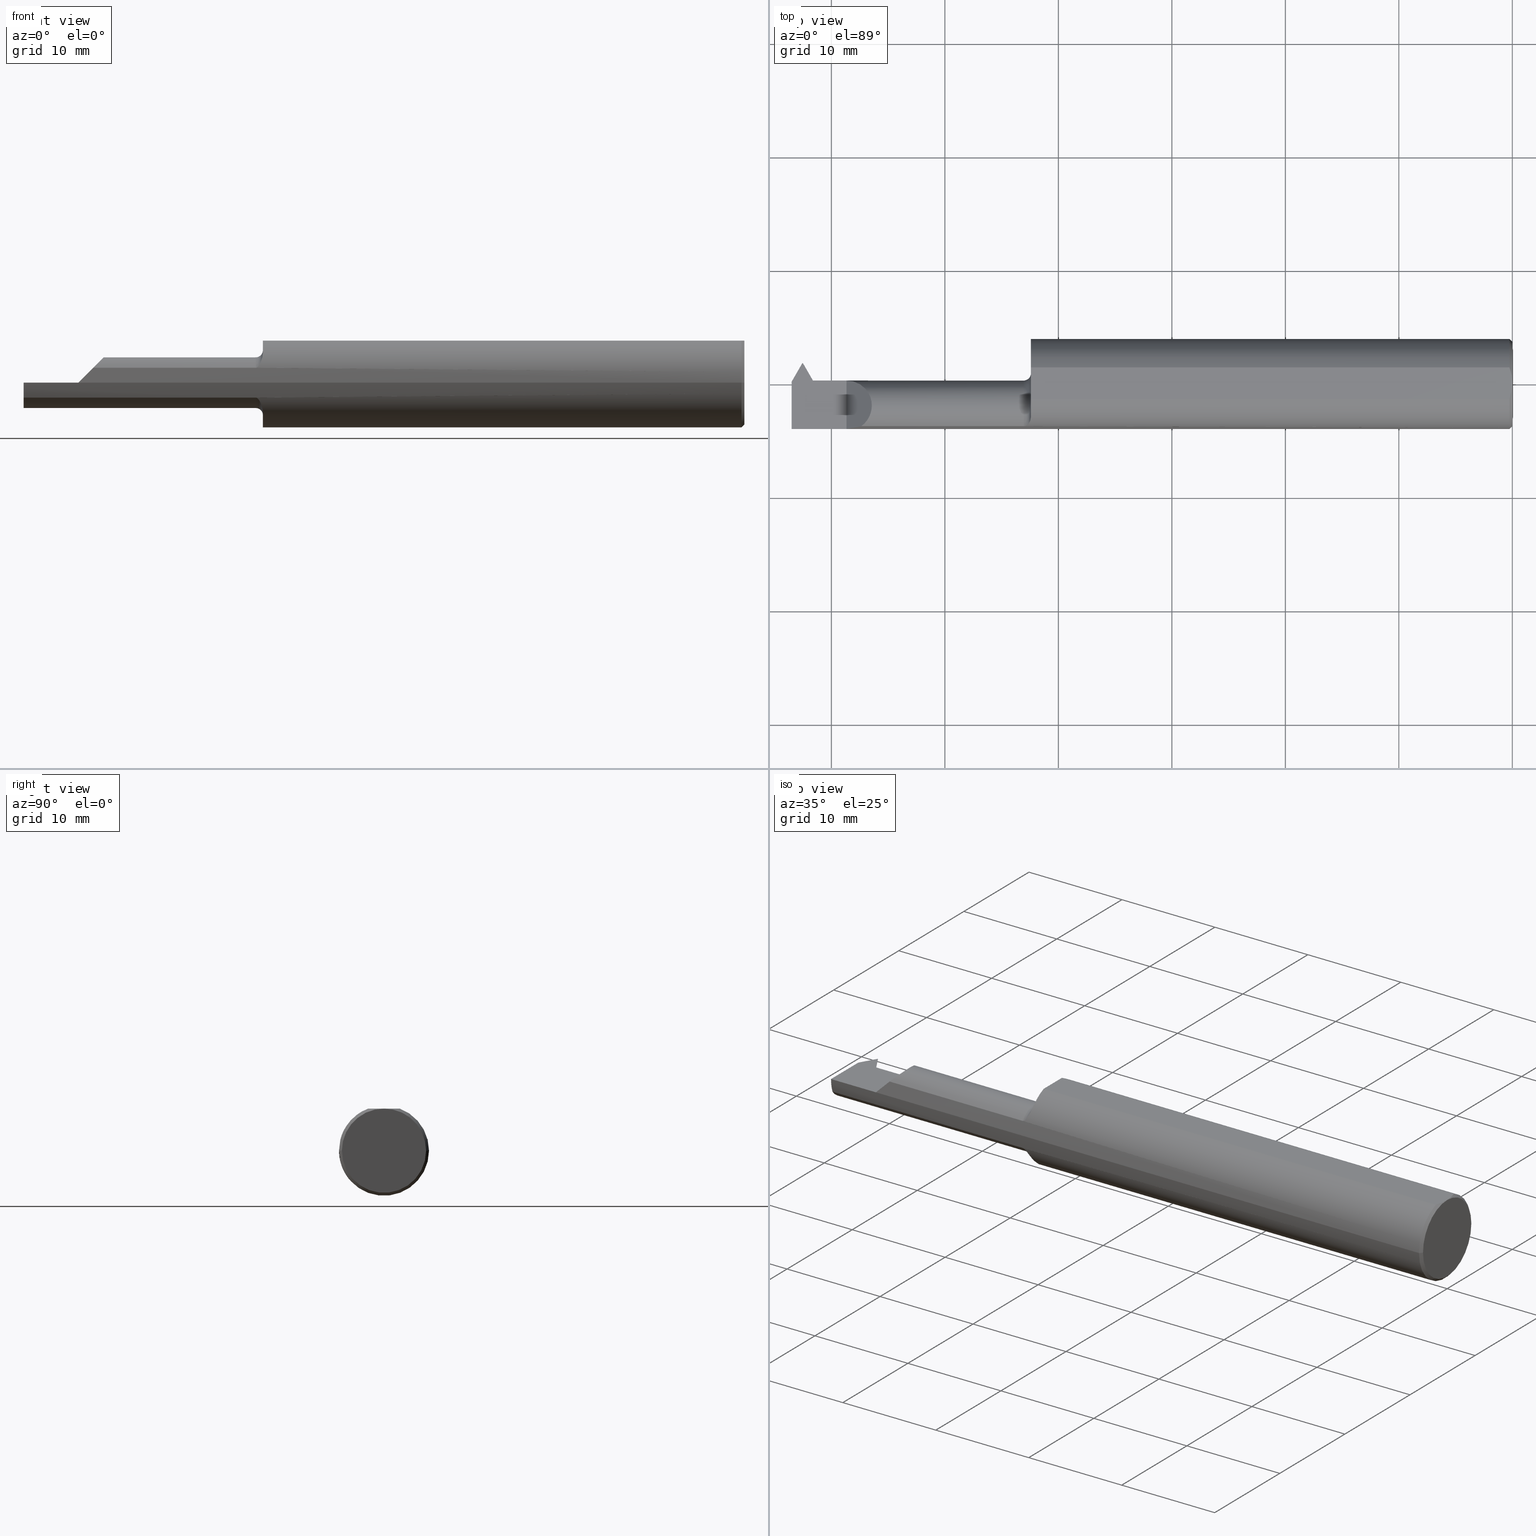
[diagram: canonical four-view strip — front | top / right | iso, engineering-drawing reading convention]
A machine part, canonical four-view strip (front | top / right | iso — engineering-drawing reading convention). The complete STEP part file that produces these views, byte-faithful:
ISO-10303-21;
HEADER;
FILE_DESCRIPTION (( 'STEP AP203' ),
    '1' );
FILE_NAME ('231801-LHTT230750.STEP',
    '2025-01-23T22:11:19',
    ( '' ),
    ( '' ),
    'SwSTEP 2.0',
    'SolidWorks 2024',
    '' );
FILE_SCHEMA (( 'CONFIG_CONTROL_DESIGN' ));
ENDSEC;

DATA;
#1 = ORIENTED_EDGE ( 'NONE', *, *, #63, .F. ) ;
#2 = SECURITY_CLASSIFICATION_LEVEL ( 'unclassified' ) ;
#3 = CARTESIAN_POINT ( 'NONE',  ( -1.693447391068664043, -0.1472695137984706970, 0.05175809410673895550 ) ) ;
#4 = LINE ( 'NONE', #132, #308 ) ;
#5 = EDGE_LOOP ( 'NONE', ( #803, #243, #349, #690 ) ) ;
#6 = CONICAL_SURFACE ( 'NONE', #51, 0.1461000000000006183, 0.7853981633974638221 ) ;
#7 = DIRECTION ( 'NONE',  ( 1.000000000000000000, 1.553500558300393113E-17, -0.000000000000000000 ) ) ;
#8 = ORIENTED_EDGE ( 'NONE', *, *, #169, .T. ) ;
#9 = EDGE_CURVE ( 'NONE', #755, #439, #522, .T. ) ;
#10 = VECTOR ( 'NONE', #766, 39.37007874015748143 ) ;
#11 = VECTOR ( 'NONE', #318, 39.37007874015748143 ) ;
#12 = LINE ( 'NONE', #428, #177 ) ;
#13 = DIRECTION ( 'NONE',  ( -4.671396556664535003E-18, 0.000000000000000000, -1.000000000000000000 ) ) ;
#14 = ORIENTED_EDGE ( 'NONE', *, *, #559, .F. ) ;
#15 = DATE_AND_TIME ( #818, #681 ) ;
#16 = CARTESIAN_POINT ( 'NONE',  ( -1.669999999999999929, 0.1561000000000000443, 0.000000000000000000 ) ) ;
#17 = CARTESIAN_POINT ( 'NONE',  ( -2.500000000000000000, 0.07189999999999992231, 8.875653457662611807E-19 ) ) ;
#18 = ORIENTED_EDGE ( 'NONE', *, *, #241, .T. ) ;
#19 = VECTOR ( 'NONE', #351, 39.37007874015748854 ) ;
#20 = CARTESIAN_POINT ( 'NONE',  ( -1.694999999999999840, -0.07610000000000005649, 0.000000000000000000 ) ) ;
#21 = AXIS2_PLACEMENT_3D ( 'NONE', #337, #810, #553 ) ;
#22 = VERTEX_POINT ( 'NONE', #319 ) ;
#23 = ADVANCED_FACE ( 'NONE', ( #661 ), #96, .T. ) ;
#24 = DIRECTION ( 'NONE',  ( -1.000000000000000000, -1.301231752219315598E-17, -0.000000000000000000 ) ) ;
#25 = ADVANCED_FACE ( 'NONE', ( #722 ), #666, .T. ) ;
#26 = ADVANCED_FACE ( 'NONE', ( #851 ), #197, .T. ) ;
#27 = ORIENTED_EDGE ( 'NONE', *, *, #686, .F. ) ;
#28 = LINE ( 'NONE', #560, #564 ) ;
#29 = VERTEX_POINT ( 'NONE', #597 ) ;
#30 = LINE ( 'NONE', #116, #10 ) ;
#31 = DIRECTION ( 'NONE',  ( 0.000000000000000000, -1.000000000000000000, 0.000000000000000000 ) ) ;
#32 = CIRCLE ( 'NONE', #226, 0.1561000000000000165 ) ;
#33 = ORIENTED_EDGE ( 'NONE', *, *, #344, .F. ) ;
#34 = DIRECTION ( 'NONE',  ( 1.224646799147319927E-16, -1.000000000000000000, 0.000000000000000000 ) ) ;
#35 = ADVANCED_FACE ( 'NONE', ( #524 ), #127, .F. ) ;
#36 = CARTESIAN_POINT ( 'NONE',  ( -0.004370115738486220897, 0.03710696786819750459, 0.1461000000000000076 ) ) ;
#37 = CARTESIAN_POINT ( 'NONE',  ( -1.669999999999965068, -0.1183915220908339644, -0.1019192528753024157 ) ) ;
#38 = DIRECTION ( 'NONE',  ( 0.000000000000000000, -1.000000000000000000, 0.000000000000000000 ) ) ;
#39 = CARTESIAN_POINT ( 'NONE',  ( -2.460717056391643176, 0.07238371841597715517, 0.001329005425271832797 ) ) ;
#40 = CARTESIAN_POINT ( 'NONE',  ( 0.000000000000000000, 2.449293598294705921E-16, 0.000000000000000000 ) ) ;
#41 = ORIENTED_EDGE ( 'NONE', *, *, #94, .F. ) ;
#42 = LINE ( 'NONE', #195, #696 ) ;
#43 = CARTESIAN_POINT ( 'NONE',  ( -1.669999999999999929, 4.041334437186263414E-17, 0.000000000000000000 ) ) ;
#44 = ORIENTED_EDGE ( 'NONE', *, *, #130, .T. ) ;
#45 = EDGE_LOOP ( 'NONE', ( #414, #752, #634 ) ) ;
#46 =( LENGTH_UNIT ( ) NAMED_UNIT ( * ) SI_UNIT ( $, .METRE. ) );
#47 = EDGE_CURVE ( 'NONE', #409, #616, #397, .T. ) ;
#48 = CIRCLE ( 'NONE', #404, 0.1461000000000006183 ) ;
#49 = CARTESIAN_POINT ( 'NONE',  ( -2.421108983848621943, 0.01189999999999981004, 0.000000000000000000 ) ) ;
#50 = DIRECTION ( 'NONE',  ( 1.098490779351301254E-17, -0.7071067811865513475, 0.7071067811865437980 ) ) ;
#51 = AXIS2_PLACEMENT_3D ( 'NONE', #623, #497, #34 ) ;
#52 = EDGE_CURVE ( 'NONE', #662, #713, #48, .T. ) ;
#53 = ORIENTED_EDGE ( 'NONE', *, *, #392, .T. ) ;
#54 = CARTESIAN_POINT ( 'NONE',  ( -2.500000000000000000, -0.1561000000000000720, 1.911673653469018376E-17 ) ) ;
#55 = CARTESIAN_POINT ( 'NONE',  ( -1.693446618368614542, -0.1472695137976343938, -0.05175809410911836467 ) ) ;
#56 = ORIENTED_EDGE ( 'NONE', *, *, #548, .T. ) ;
#57 = FACE_OUTER_BOUND ( 'NONE', #166, .T. ) ;
#58 = CARTESIAN_POINT ( 'NONE',  ( -2.413632881043807465, 0.007084169345407169416, -0.02871226167188161912 ) ) ;
#59 = EDGE_CURVE ( 'NONE', #309, #869, #362, .T. ) ;
#60 = DIRECTION ( 'NONE',  ( 0.000000000000000000, -0.7071067811865539010, -0.7071067811865411334 ) ) ;
#61 = VERTEX_POINT ( 'NONE', #730 ) ;
#62 = FACE_OUTER_BOUND ( 'NONE', #811, .T. ) ;
#63 = EDGE_CURVE ( 'NONE', #276, #869, #833, .T. ) ;
#64 = CARTESIAN_POINT ( 'NONE',  ( -1.689325941459028479, -0.1465552322353804726, 0.05375321273095502728 ) ) ;
#65 = PLANE ( 'NONE',  #828 ) ;
#66 = ORIENTED_EDGE ( 'NONE', *, *, #459, .F. ) ;
#67 = COORDINATED_UNIVERSAL_TIME_OFFSET ( 8, 0, .BEHIND. ) ;
#68 = LOCAL_TIME ( 14, 11, 19.00000000000000000, #224 ) ;
#69 = AXIS2_PLACEMENT_3D ( 'NONE', #20, #24, #565 ) ;
#70 = CARTESIAN_POINT ( 'NONE',  ( -2.421108983848621943, -0.05220356898271225760, -0.08799999999999999489 ) ) ;
#71 = DIRECTION ( 'NONE',  ( 1.165357228183001544E-14, 0.7071067811865436870, 0.7071067811865512365 ) ) ;
#72 = VERTEX_POINT ( 'NONE', #348 ) ;
#73 = DATE_AND_TIME ( #617, #450 ) ;
#74 = DIRECTION ( 'NONE',  ( -0.4999999999999907296, 0.000000000000000000, 0.8660254037844440367 ) ) ;
#75 = CARTESIAN_POINT ( 'NONE',  ( -1.669999999999999929, -0.1142537450715595260, -0.1063639588254144952 ) ) ;
#76 = EDGE_LOOP ( 'NONE', ( #200, #700, #272, #56, #825, #339, #773, #27, #18, #848, #820, #456 ) ) ;
#77 = APPROVAL_ROLE ( '' ) ;
#78 = CARTESIAN_POINT ( 'NONE',  ( -2.415267408189822440, 0.007084169345407207580, -0.02871226167188153586 ) ) ;
#79 = VECTOR ( 'NONE', #235, 39.37007874015748143 ) ;
#80 = CARTESIAN_POINT ( 'NONE',  ( -2.413632881043807465, 0.6503230061517655258, 0.6145265751344650695 ) ) ;
#81 = ORIENTED_EDGE ( 'NONE', *, *, #846, .T. ) ;
#82 = PERSON_AND_ORGANIZATION_ROLE ( 'creator' ) ;
#83 = CC_DESIGN_APPROVAL ( #721, ( #300 ) ) ;
#84 = VECTOR ( 'NONE', #527, 39.37007874015748854 ) ;
#85 = DIRECTION ( 'NONE',  ( 1.000000000000000000, 1.224646799147352961E-16, -0.000000000000000000 ) ) ;
#86 = CARTESIAN_POINT ( 'NONE',  ( -2.462506354991546242, 0.002980892972014761392, -0.08799999999999992550 ) ) ;
#87 = ORIENTED_EDGE ( 'NONE', *, *, #146, .F. ) ;
#88 = DATE_AND_TIME ( #208, #231 ) ;
#89 = CARTESIAN_POINT ( 'NONE',  ( -1.669999999999999929, -0.1142537450716377551, 0.1063639588253864066 ) ) ;
#90 = CC_DESIGN_DATE_AND_TIME_ASSIGNMENT ( #760, #685, ( #184 ) ) ;
#91 = ORIENTED_EDGE ( 'NONE', *, *, #749, .F. ) ;
#92 = EDGE_CURVE ( 'NONE', #403, #207, #754, .T. ) ;
#93 = AXIS2_PLACEMENT_3D ( 'NONE', #332, #610, #674 ) ;
#94 = EDGE_CURVE ( 'NONE', #61, #662, #482, .T. ) ;
#95 = LINE ( 'NONE', #17, #271 ) ;
#96 = CONICAL_SURFACE ( 'NONE', #719, 0.1461000000000006183, 0.7853981633974638221 ) ;
#97 = VERTEX_POINT ( 'NONE', #671 ) ;
#98 = VECTOR ( 'NONE', #175, 39.37007874015748143 ) ;
#99 = CARTESIAN_POINT ( 'NONE',  ( -2.426108983848622280, 0.01189999999999981004, 0.000000000000000000 ) ) ;
#100 = ORIENTED_EDGE ( 'NONE', *, *, #290, .T. ) ;
#101 = FACE_OUTER_BOUND ( 'NONE', #537, .T. ) ;
#102 = LINE ( 'NONE', #709, #379 ) ;
#103 = ORIENTED_EDGE ( 'NONE', *, *, #405, .F. ) ;
#104 = CARTESIAN_POINT ( 'NONE',  ( -2.500000000000000000, -0.07610000000000008424, 0.000000000000000000 ) ) ;
#105 = DIRECTION ( 'NONE',  ( 1.224646799147352961E-16, -1.000000000000000000, 0.000000000000000000 ) ) ;
#106 = CIRCLE ( 'NONE', #659, 0.1561000000000000165 ) ;
#107 = CARTESIAN_POINT ( 'NONE',  ( -2.417151050136866708, 0.01027984334874563511, -0.01945386571184650262 ) ) ;
#108 = AXIS2_PLACEMENT_3D ( 'NONE', #744, #13, #602 ) ;
#109 = DIRECTION ( 'NONE',  ( 0.4999999999999878431, 0.8660254037844455910, 0.000000000000000000 ) ) ;
#110 = B_SPLINE_CURVE_WITH_KNOTS ( 'NONE', 3,
 ( #866, #412, #481, #477, #211, #748, #465, #284, #407, #279, #64, #336, #3, #687 ),
 .UNSPECIFIED., .F., .F.,
 ( 4, 2, 2, 2, 2, 2, 4 ),
 ( 0.0002357998142118108715, 0.0006937643599550314191, 0.001151728905698251940, 0.001609693451441472460, 0.001838675724313082504, 0.001953166860748887634, 0.002067657997184692547 ),
 .UNSPECIFIED. ) ;
#111 = CARTESIAN_POINT ( 'NONE',  ( -2.488969632988080628E-16, 0.01190000000005054549, 0.000000000000000000 ) ) ;
#112 = VECTOR ( 'NONE', #441, 39.37007874015748143 ) ;
#113 = ORIENTED_EDGE ( 'NONE', *, *, #161, .F. ) ;
#114 = PRODUCT_RELATED_PRODUCT_CATEGORY ( 'detail', '', ( #460 ) ) ;
#115 = ORIENTED_EDGE ( 'NONE', *, *, #365, .F. ) ;
#116 = CARTESIAN_POINT ( 'NONE',  ( -2.058054491924310891, -0.1472695137976346713, 0.05175809410911783731 ) ) ;
#117 = UNCERTAINTY_MEASURE_WITH_UNIT (LENGTH_MEASURE( 1.000000000000000082E-05 ), #401, 'distance_accuracy_value', 'NONE');
#118 = DIRECTION ( 'NONE',  ( 1.000000000000000000, -0.000000000000000000, 0.000000000000000000 ) ) ;
#119 = EDGE_LOOP ( 'NONE', ( #834, #371, #511 ) ) ;
#120 = VERTEX_POINT ( 'NONE', #544 ) ;
#121 = PERSON_AND_ORGANIZATION ( #583, #466 ) ;
#122 = LINE ( 'NONE', #176, #185 ) ;
#123 = CARTESIAN_POINT ( 'NONE',  ( -1.691958743194513115, -0.1470959753313503537, -0.05225520737744673849 ) ) ;
#124 = ORIENTED_EDGE ( 'NONE', *, *, #510, .F. ) ;
#125 = PERSON_AND_ORGANIZATION ( #583, #466 ) ;
#126 = CARTESIAN_POINT ( 'NONE',  ( -0.009999999999999073866, 0.05497272050753925637, 0.1461000000000000076 ) ) ;
#127 = PLANE ( 'NONE',  #816 ) ;
#128 = ORIENTED_EDGE ( 'NONE', *, *, #434, .F. ) ;
#129 = APPLICATION_PROTOCOL_DEFINITION ( 'international standard', 'config_control_design', 1994, #416 ) ;
#130 = EDGE_CURVE ( 'NONE', #598, #304, #815, .T. ) ;
#131 = DIRECTION ( 'NONE',  ( 0.000000000000000000, -1.000000000000000000, -1.776356839400250465E-15 ) ) ;
#132 = CARTESIAN_POINT ( 'NONE',  ( -2.481122797377521838, -0.02926373109667449249, -0.08799999999999999489 ) ) ;
#133 = ORIENTED_EDGE ( 'NONE', *, *, #264, .T. ) ;
#134 = ADVANCED_FACE ( 'NONE', ( #418 ), #402, .T. ) ;
#135 = FACE_OUTER_BOUND ( 'NONE', #521, .T. ) ;
#136 = ORIENTED_EDGE ( 'NONE', *, *, #651, .T. ) ;
#137 = VECTOR ( 'NONE', #341, 39.37007874015748143 ) ;
#138 = VECTOR ( 'NONE', #827, 39.37007874015748143 ) ;
#139 = FACE_OUTER_BOUND ( 'NONE', #119, .T. ) ;
#140 = APPLICATION_CONTEXT ( 'configuration controlled 3d designs of mechanical parts and assemblies' ) ;
#141 = CARTESIAN_POINT ( 'NONE',  ( -1.669999999999999929, -0.05497272050753901351, 0.1461000000000000076 ) ) ;
#142 = ORIENTED_EDGE ( 'NONE', *, *, #835, .T. ) ;
#143 = CALENDAR_DATE ( 2025, 23, 1 ) ;
#144 = CARTESIAN_POINT ( 'NONE',  ( -1.819714732526711343, -1.050612790672645458, -0.03000000000000922762 ) ) ;
#145 = VERTEX_POINT ( 'NONE', #620 ) ;
#146 = EDGE_CURVE ( 'NONE', #304, #403, #222, .T. ) ;
#147 = DIRECTION ( 'NONE',  ( -0.7071067811865368036, 0.7071067811865583419, 8.659560562355067211E-17 ) ) ;
#148 = ADVANCED_FACE ( 'NONE', ( #333 ), #536, .F. ) ;
#149 = CARTESIAN_POINT ( 'NONE',  ( -0.009999999999999073866, -0.05497272050753881228, 0.1461000000000000076 ) ) ;
#150 = ORIENTED_EDGE ( 'NONE', *, *, #640, .T. ) ;
#151 = DATE_TIME_ROLE ( 'creation_date' ) ;
#152 = DIRECTION ( 'NONE',  ( -1.224646799147352961E-16, 1.000000000000000000, 0.000000000000000000 ) ) ;
#153 = AXIS2_PLACEMENT_3D ( 'NONE', #693, #280, #352 ) ;
#154 = DIRECTION ( 'NONE',  ( 0.000000000000000000, 1.000000000000000000, 0.000000000000000000 ) ) ;
#155 = EDGE_LOOP ( 'NONE', ( #163, #124 ) ) ;
#156 = APPROVAL_STATUS ( 'not_yet_approved' ) ;
#157 = FACE_OUTER_BOUND ( 'NONE', #76, .T. ) ;
#158 = EDGE_CURVE ( 'NONE', #448, #795, #589, .T. ) ;
#159 = CARTESIAN_POINT ( 'NONE',  ( -2.274912119307999969, -0.1531282856005203030, 0.03508788069200007714 ) ) ;
#160 = ORIENTED_EDGE ( 'NONE', *, *, #392, .F. ) ;
#161 = EDGE_CURVE ( 'NONE', #585, #612, #873, .T. ) ;
#162 = DIRECTION ( 'NONE',  ( 1.000000000000000000, 0.000000000000000000, -0.000000000000000000 ) ) ;
#163 = ORIENTED_EDGE ( 'NONE', *, *, #169, .F. ) ;
#164 = AXIS2_PLACEMENT_3D ( 'NONE', #614, #217, #601 ) ;
#165 = CARTESIAN_POINT ( 'NONE',  ( -2.292330217250612812, -0.1561000000000000443, 0.01766978274938703006 ) ) ;
#166 = EDGE_LOOP ( 'NONE', ( #386, #652, #214, #485, #531 ) ) ;
#167 = AXIS2_PLACEMENT_3D ( 'NONE', #822, #826, #152 ) ;
#168 = CARTESIAN_POINT ( 'NONE',  ( -2.500000000000000000, -6.123233995736767268E-17, 0.000000000000000000 ) ) ;
#169 = EDGE_CURVE ( 'NONE', #608, #22, #289, .T. ) ;
#170 = ORIENTED_EDGE ( 'NONE', *, *, #559, .T. ) ;
#171 = DIMENSIONAL_EXPONENTS ( 1.000000000000000000, 0.000000000000000000, 0.000000000000000000, 0.000000000000000000, 0.000000000000000000, 0.000000000000000000, 0.000000000000000000 ) ;
#172 = CARTESIAN_POINT ( 'NONE',  ( -1.878571113266080284, 1.084593537935991225, 0.000000000000000000 ) ) ;
#173 = FACE_OUTER_BOUND ( 'NONE', #239, .T. ) ;
#174 = ORIENTED_EDGE ( 'NONE', *, *, #686, .T. ) ;
#175 = DIRECTION ( 'NONE',  ( 1.000000000000000000, 1.301231752219315598E-17, 0.000000000000000000 ) ) ;
#176 = CARTESIAN_POINT ( 'NONE',  ( -2.500000000000000000, 0.01189999999999991238, 8.875653457662611807E-19 ) ) ;
#177 = VECTOR ( 'NONE', #85, 39.37007874015748143 ) ;
#178 = EDGE_LOOP ( 'NONE', ( #847, #558, #817, #498, #400, #837, #174 ) ) ;
#179 = AXIS2_PLACEMENT_3D ( 'NONE', #638, #307, #162 ) ;
#180 = ORIENTED_EDGE ( 'NONE', *, *, #326, .T. ) ;
#181 = DIRECTION ( 'NONE',  ( 1.000000000000000000, 1.224646799147352961E-16, -0.000000000000000000 ) ) ;
#182 = PLANE ( 'NONE',  #427 ) ;
#183 = ADVANCED_FACE ( 'NONE', ( #135 ), #65, .F. ) ;
#184 = SECURITY_CLASSIFICATION ( '', '', #2 ) ;
#185 = VECTOR ( 'NONE', #720, 39.37007874015748143 ) ;
#186 = DIRECTION ( 'NONE',  ( -1.000000000000000000, 0.000000000000000000, -0.000000000000000000 ) ) ;
#187 = DIRECTION ( 'NONE',  ( -1.000000000000000000, -1.224646799147319927E-16, 0.000000000000000000 ) ) ;
#188 = ADVANCED_FACE ( 'NONE', ( #413 ), #824, .F. ) ;
#189 = DIRECTION ( 'NONE',  ( 1.000000000000000000, 1.224646799147352961E-16, -0.000000000000000000 ) ) ;
#190 = DIRECTION ( 'NONE',  ( 0.000000000000000000, -1.000000000000000000, 0.000000000000000000 ) ) ;
#191 = ORIENTED_EDGE ( 'NONE', *, *, #63, .T. ) ;
#192 = DIRECTION ( 'NONE',  ( 0.000000000000000000, 0.000000000000000000, 1.000000000000000000 ) ) ;
#193 = DIRECTION ( 'NONE',  ( 1.000000000000000000, 1.301231752219315598E-17, 0.000000000000000000 ) ) ;
#194 = CARTESIAN_POINT ( 'NONE',  ( -2.421108983848621943, 0.01189999999999981004, 0.000000000000000000 ) ) ;
#195 = CARTESIAN_POINT ( 'NONE',  ( -2.500000000000000000, -0.1561000000000000720, 8.875653457662609881E-19 ) ) ;
#196 = CARTESIAN_POINT ( 'NONE',  ( -2.500000000000000000, 0.007084169345407198906, -0.02871226167188161912 ) ) ;
#197 = PLANE ( 'NONE',  #297 ) ;
#198 = EDGE_CURVE ( 'NONE', #361, #97, #4, .T. ) ;
#199 = CC_DESIGN_SECURITY_CLASSIFICATION ( #184, ( #300 ) ) ;
#200 = ORIENTED_EDGE ( 'NONE', *, *, #342, .F. ) ;
#201 = DIRECTION ( 'NONE',  ( -9.201097958895396924E-18, 0.7071067811865539010, 0.7071067811865411334 ) ) ;
#202 = CARTESIAN_POINT ( 'NONE',  ( -2.461493645008453690, 0.06098089297201456094, -0.02999999999999948888 ) ) ;
#203 = ORIENTED_EDGE ( 'NONE', *, *, #548, .F. ) ;
#204 = DIRECTION ( 'NONE',  ( -2.196953021474273815E-33, 1.414195192744475008E-16, -1.000000000000000000 ) ) ;
#205 = DIRECTION ( 'NONE',  ( -1.301231752219315598E-17, 1.000000000000000000, 1.414195192744475008E-16 ) ) ;
#206 = CARTESIAN_POINT ( 'NONE',  ( -0.009999999999999073866, 2.437047130303233649E-16, 0.000000000000000000 ) ) ;
#207 = VERTEX_POINT ( 'NONE', #213 ) ;
#208 = CALENDAR_DATE ( 2025, 23, 1 ) ;
#209 = AXIS2_PLACEMENT_3D ( 'NONE', #570, #181, #724 ) ;
#210 = VECTOR ( 'NONE', #343, 39.37007874015748143 ) ;
#211 = CARTESIAN_POINT ( 'NONE',  ( -1.673484131199154623, -0.1325297027135503847, 0.08268119770259226009 ) ) ;
#212 = EDGE_CURVE ( 'NONE', #795, #97, #275, .T. ) ;
#213 = CARTESIAN_POINT ( 'NONE',  ( -2.429632881043807480, -0.05220356898271236862, -0.08800000000000009204 ) ) ;
#214 = ORIENTED_EDGE ( 'NONE', *, *, #94, .T. ) ;
#215 = COORDINATED_UNIVERSAL_TIME_OFFSET ( 8, 0, .BEHIND. ) ;
#216 = EDGE_CURVE ( 'NONE', #694, #525, #335, .T. ) ;
#217 = DIRECTION ( 'NONE',  ( 1.000000000000000000, 1.301231752219315598E-17, 0.000000000000000000 ) ) ;
#218 = DIRECTION ( 'NONE',  ( 2.049582212105629957E-14, -0.9799247046208295897, 0.1993679344171976342 ) ) ;
#219 = ORIENTED_EDGE ( 'NONE', *, *, #52, .F. ) ;
#220 = APPROVAL_DATE_TIME ( #88, #721 ) ;
#221 = CARTESIAN_POINT ( 'NONE',  ( -2.429632881043807480, 0.6503230061517655258, 0.6145265751344650695 ) ) ;
#222 = LINE ( 'NONE', #144, #496 ) ;
#223 = VERTEX_POINT ( 'NONE', #141 ) ;
#224 = COORDINATED_UNIVERSAL_TIME_OFFSET ( 8, 0, .BEHIND. ) ;
#225 = APPROVAL ( #799, 'UNSPECIFIED' ) ;
#226 = AXIS2_PLACEMENT_3D ( 'NONE', #470, #322, #605 ) ;
#227 = DIRECTION ( 'NONE',  ( 0.000000000000000000, 0.7071067811865539010, 0.7071067811865411334 ) ) ;
#228 = CARTESIAN_POINT ( 'NONE',  ( -2.399999999999999911, 0.002980892972014675957, -0.08799999999999999489 ) ) ;
#229 = EDGE_CURVE ( 'NONE', #694, #29, #408, .T. ) ;
#230 = ORIENTED_EDGE ( 'NONE', *, *, #600, .F. ) ;
#231 = LOCAL_TIME ( 14, 11, 19.00000000000000000, #215 ) ;
#232 = VECTOR ( 'NONE', #193, 39.37007874015748143 ) ;
#233 = CARTESIAN_POINT ( 'NONE',  ( -2.399999999999999911, -0.05220356898271225760, -0.08799999999999999489 ) ) ;
#234 = ORIENTED_EDGE ( 'NONE', *, *, #367, .T. ) ;
#235 = DIRECTION ( 'NONE',  ( -1.000000000000000000, 0.000000000000000000, 0.000000000000000000 ) ) ;
#236 = VERTEX_POINT ( 'NONE', #399 ) ;
#237 = LINE ( 'NONE', #228, #738 ) ;
#238 = CIRCLE ( 'NONE', #867, 0.1561000000000000165 ) ;
#239 = EDGE_LOOP ( 'NONE', ( #247, #860, #684, #437, #716, #631 ) ) ;
#240 = CARTESIAN_POINT ( 'NONE',  ( 2.745045800288798215E-17, -0.1461000000000003685, 0.000000000000000000 ) ) ;
#241 = EDGE_CURVE ( 'NONE', #145, #276, #320, .T. ) ;
#242 = CARTESIAN_POINT ( 'NONE',  ( -2.429632881043807924, 0.005796431017288921489, -0.02999999999999957909 ) ) ;
#243 = ORIENTED_EDGE ( 'NONE', *, *, #526, .T. ) ;
#244 = LINE ( 'NONE', #444, #254 ) ;
#245 = CARTESIAN_POINT ( 'NONE',  ( -1.873285267473298710, 1.081541753444633436, -0.03000000000001948330 ) ) ;
#246 = CARTESIAN_POINT ( 'NONE',  ( -2.206585760359397241, 0.01189999999999992106, 0.1034142396406014797 ) ) ;
#247 = ORIENTED_EDGE ( 'NONE', *, *, #406, .F. ) ;
#248 = LINE ( 'NONE', #782, #98 ) ;
#249 = CC_DESIGN_PERSON_AND_ORGANIZATION_ASSIGNMENT ( #812, #821, ( #300 ) ) ;
#250 = DIRECTION ( 'NONE',  ( -6.842104469694102049E-17, 0.3768974211598659640, 0.9262550048032359706 ) ) ;
#251 = CARTESIAN_POINT ( 'NONE',  ( -2.413632881043807465, 0.6503230061517655258, 0.6145265751344650695 ) ) ;
#252 = EDGE_CURVE ( 'NONE', #236, #755, #632, .T. ) ;
#253 =( BOUNDED_CURVE ( )  B_SPLINE_CURVE ( 3, ( #832, #165, #159, #429 ),
 .UNSPECIFIED., .F., .F. ) 
 B_SPLINE_CURVE_WITH_KNOTS ( ( 4, 4 ),
 ( 4.712388980384689674, 5.050356325447890704 ),
 .UNSPECIFIED. ) 
 CURVE ( )  GEOMETRIC_REPRESENTATION_ITEM ( )  RATIONAL_B_SPLINE_CURVE ( ( 1.000000000000000000, 0.9905041350217796969, 0.9905041350217796969, 1.000000000000000000 ) ) 
 REPRESENTATION_ITEM ( '' )  );
#254 = VECTOR ( 'NONE', #516, 39.37007874015748143 ) ;
#255 = FACE_OUTER_BOUND ( 'NONE', #425, .T. ) ;
#256 = DIRECTION ( 'NONE',  ( 1.000000000000000000, 1.224646799147352961E-16, -0.000000000000000000 ) ) ;
#257 = VERTEX_POINT ( 'NONE', #762 ) ;
#258 =( NAMED_UNIT ( * ) PLANE_ANGLE_UNIT ( ) SI_UNIT ( $, .RADIAN. ) );
#259 = LINE ( 'NONE', #54, #806 ) ;
#260 = CARTESIAN_POINT ( 'NONE',  ( -1.679076445919353011, -0.1408180008929574845, -0.06757000550034257536 ) ) ;
#261 = AXIS2_PLACEMENT_3D ( 'NONE', #325, #204, #742 ) ;
#262 = ORIENTED_EDGE ( 'NONE', *, *, #443, .F. ) ;
#263 = DIRECTION ( 'NONE',  ( 0.9799247046208295897, 1.275109140436757286E-17, 0.1993679344171976342 ) ) ;
#264 = EDGE_CURVE ( 'NONE', #728, #353, #503, .T. ) ;
#265 = LINE ( 'NONE', #398, #334 ) ;
#266 = CARTESIAN_POINT ( 'NONE',  ( -1.673462366684950409, -0.1324922991513197701, -0.08274570526434620044 ) ) ;
#267 = VERTEX_POINT ( 'NONE', #99 ) ;
#268 = AXIS2_PLACEMENT_3D ( 'NONE', #168, #774, #294 ) ;
#269 = CARTESIAN_POINT ( 'NONE',  ( -3.241309669837331952E-33, 2.086455426436077518E-16, 0.1461000000000000354 ) ) ;
#270 = APPROVAL_PERSON_ORGANIZATION ( #282, #721, #701 ) ;
#271 = VECTOR ( 'NONE', #712, 39.37007874015748143 ) ;
#272 = ORIENTED_EDGE ( 'NONE', *, *, #510, .T. ) ;
#273 = CARTESIAN_POINT ( 'NONE',  ( -2.462000000000000632, 0.7063845006785161029, 0.6145265751344650695 ) ) ;
#274 = LINE ( 'NONE', #196, #137 ) ;
#275 = LINE ( 'NONE', #607, #642 ) ;
#276 = VERTEX_POINT ( 'NONE', #370 ) ;
#277 = PERSON_AND_ORGANIZATION ( #583, #466 ) ;
#278 = ADVANCED_FACE ( 'NONE', ( #836 ), #492, .T. ) ;
#279 = CARTESIAN_POINT ( 'NONE',  ( -1.688181177459762594, -0.1461969813683959285, 0.05472577389935778802 ) ) ;
#280 = DIRECTION ( 'NONE',  ( 1.000000000000000000, 1.301231752219315598E-17, 0.000000000000000000 ) ) ;
#281 = VERTEX_POINT ( 'NONE', #772 ) ;
#282 = PERSON_AND_ORGANIZATION ( #583, #466 ) ;
#283 = EDGE_CURVE ( 'NONE', #713, #72, #629, .T. ) ;
#284 = CARTESIAN_POINT ( 'NONE',  ( -1.683413277050727519, -0.1440082460785158947, 0.06029952348880728008 ) ) ;
#285 = DIRECTION ( 'NONE',  ( 0.000000000000000000, -0.7071067811865539010, -0.7071067811865411334 ) ) ;
#286 = EDGE_LOOP ( 'NONE', ( #14, #489, #621, #562 ) ) ;
#287 = CIRCLE ( 'NONE', #167, 0.1461000000000006183 ) ;
#288 = FACE_OUTER_BOUND ( 'NONE', #584, .T. ) ;
#289 = LINE ( 'NONE', #80, #603 ) ;
#290 = EDGE_CURVE ( 'NONE', #585, #207, #500, .T. ) ;
#291 = ORIENTED_EDGE ( 'NONE', *, *, #688, .T. ) ;
#292 = FACE_OUTER_BOUND ( 'NONE', #515, .T. ) ;
#293 = ADVANCED_FACE ( 'NONE', ( #438 ), #635, .F. ) ;
#294 = DIRECTION ( 'NONE',  ( 0.000000000000000000, 1.000000000000000000, 0.000000000000000000 ) ) ;
#295 = ORIENTED_EDGE ( 'NONE', *, *, #502, .T. ) ;
#296 = CIRCLE ( 'NONE', #164, 0.1561000000000000165 ) ;
#297 = AXIS2_PLACEMENT_3D ( 'NONE', #251, #186, #394 ) ;
#298 = CARTESIAN_POINT ( 'NONE',  ( -2.461493645008453690, 0.06098089297201398501, -0.02999999999999987052 ) ) ;
#299 = ORIENTED_EDGE ( 'NONE', *, *, #216, .F. ) ;
#300 = PRODUCT_DEFINITION_FORMATION_WITH_SPECIFIED_SOURCE ( 'ANY', '', #460, .NOT_KNOWN. ) ;
#301 = CARTESIAN_POINT ( 'NONE',  ( -1.694999999999999840, -0.07610000000000007037, 0.000000000000000000 ) ) ;
#302 = ORIENTED_EDGE ( 'NONE', *, *, #406, .T. ) ;
#303 = CARTESIAN_POINT ( 'NONE',  ( -2.500000000000000000, -6.123233995736767268E-17, 0.000000000000000000 ) ) ;
#304 = VERTEX_POINT ( 'NONE', #298 ) ;
#305 = DIRECTION ( 'NONE',  ( -0.8486396879975963703, -0.4899623523104221223, 0.1993679344171976064 ) ) ;
#306 = AXIS2_PLACEMENT_3D ( 'NONE', #221, #555, #227 ) ;
#307 = DIRECTION ( 'NONE',  ( 0.000000000000000000, 0.000000000000000000, 1.000000000000000000 ) ) ;
#308 = VECTOR ( 'NONE', #488, 39.37007874015748854 ) ;
#309 = VERTEX_POINT ( 'NONE', #89 ) ;
#310 = DIRECTION ( 'NONE',  ( 1.000000000000000000, 2.625795189209523141E-14, 2.625795189209475494E-14 ) ) ;
#311 = CARTESIAN_POINT ( 'NONE',  ( -2.500000000000000000, -0.1561000000000000720, 8.875653457662611807E-19 ) ) ;
#312 = CARTESIAN_POINT ( 'NONE',  ( -2.500000000000000000, -6.123233995736767268E-17, 0.000000000000000000 ) ) ;
#313 = FACE_OUTER_BOUND ( 'NONE', #672, .T. ) ;
#314 = CARTESIAN_POINT ( 'NONE',  ( -2.500000000000000000, -0.04738773832811996045, -0.08318416934540778795 ) ) ;
#315 = EDGE_CURVE ( 'NONE', #461, #448, #573, .T. ) ;
#316 = DIRECTION ( 'NONE',  ( 0.000000000000000000, 1.000000000000000000, 0.000000000000000000 ) ) ;
#317 = ORIENTED_EDGE ( 'NONE', *, *, #823, .F. ) ;
#318 = DIRECTION ( 'NONE',  ( 0.1143501000964193132, 0.1980601832175917787, 0.9734969021171833159 ) ) ;
#319 = CARTESIAN_POINT ( 'NONE',  ( -2.413632881043807465, -0.04738773832811999515, -0.08318416934540782959 ) ) ;
#320 = CIRCLE ( 'NONE', #446, 0.08800000000000013367 ) ;
#321 = ORIENTED_EDGE ( 'NONE', *, *, #130, .F. ) ;
#322 = DIRECTION ( 'NONE',  ( -1.000000000000000000, -1.224646799147319927E-16, 0.000000000000000000 ) ) ;
#323 = DIRECTION ( 'NONE',  ( 1.000000000000000000, 1.224646799147352961E-16, -0.000000000000000000 ) ) ;
#324 = CARTESIAN_POINT ( 'NONE',  ( -2.310000000000000053, 0.01189999999999987769, 0.000000000000000000 ) ) ;
#325 = CARTESIAN_POINT ( 'NONE',  ( -2.500000000000000000, 0.1811000000000001220, 0.1461000000000000354 ) ) ;
#326 = EDGE_CURVE ( 'NONE', #361, #598, #237, .T. ) ;
#327 = DIRECTION ( 'NONE',  ( 1.224646799147319927E-16, -1.000000000000000000, 0.000000000000000000 ) ) ;
#328 = CARTESIAN_POINT ( 'NONE',  ( -1.689346208252526127, -0.1465601710296003668, -0.05373964015989951548 ) ) ;
#329 = ORIENTED_EDGE ( 'NONE', *, *, #326, .F. ) ;
#330 = DIRECTION ( 'NONE',  ( 0.1993679344171976064, 0.000000000000000000, -0.9799247046208294787 ) ) ;
#331 = EDGE_CURVE ( 'NONE', #236, #439, #253, .T. ) ;
#332 = CARTESIAN_POINT ( 'NONE',  ( -2.310000000000000053, -0.2500000000000000000, 0.000000000000000000 ) ) ;
#333 = FACE_OUTER_BOUND ( 'NONE', #831, .T. ) ;
#334 = VECTOR ( 'NONE', #201, 39.37007874015748143 ) ;
#335 = CIRCLE ( 'NONE', #422, 0.1561000000000000165 ) ;
#336 = CARTESIAN_POINT ( 'NONE',  ( -1.691954860809191885, -0.1470959542221378924, 0.05225537509141345988 ) ) ;
#337 = CARTESIAN_POINT ( 'NONE',  ( -2.399999999999999911, 0.07189999999999992231, 8.875653457662611807E-19 ) ) ;
#338 = VECTOR ( 'NONE', #323, 39.37007874015748143 ) ;
#339 = ORIENTED_EDGE ( 'NONE', *, *, #491, .T. ) ;
#340 = EDGE_CURVE ( 'NONE', #353, #120, #95, .T. ) ;
#341 = DIRECTION ( 'NONE',  ( -1.000000000000000000, -1.301231752219315598E-17, -0.000000000000000000 ) ) ;
#342 = EDGE_CURVE ( 'NONE', #770, #612, #768, .T. ) ;
#343 = DIRECTION ( 'NONE',  ( 1.301231752219315598E-17, -1.000000000000000000, 0.000000000000000000 ) ) ;
#344 = EDGE_CURVE ( 'NONE', #657, #353, #102, .T. ) ;
#345 = ORIENTED_EDGE ( 'NONE', *, *, #92, .T. ) ;
#346 = PERSON_AND_ORGANIZATION ( #583, #466 ) ;
#347 = CARTESIAN_POINT ( 'NONE',  ( -1.669999999999999929, 4.041334437186263414E-17, 0.000000000000000000 ) ) ;
#348 = CARTESIAN_POINT ( 'NONE',  ( -0.009999999999999054784, -0.1560999999999997667, 1.911673653469018376E-17 ) ) ;
#349 = ORIENTED_EDGE ( 'NONE', *, *, #229, .F. ) ;
#350 = APPROVAL_ROLE ( '' ) ;
#351 = DIRECTION ( 'NONE',  ( -0.5000000000000094369, 0.8660254037844332675, 0.000000000000000000 ) ) ;
#352 = DIRECTION ( 'NONE',  ( -1.301231752219315598E-17, 1.000000000000000000, 0.000000000000000000 ) ) ;
#353 = VERTEX_POINT ( 'NONE', #840 ) ;
#354 = SHAPE_DEFINITION_REPRESENTATION ( #771, #645 ) ;
#355 = CIRCLE ( 'NONE', #499, 0.1461000000000006183 ) ;
#356 = ADVANCED_FACE ( 'NONE', ( #424 ), #376, .F. ) ;
#357 = CARTESIAN_POINT ( 'NONE',  ( -2.310000000000000053, 0.01189999999999987769, 0.000000000000000000 ) ) ;
#358 = CARTESIAN_POINT ( 'NONE',  ( -1.878571113266080284, 1.084593537935991225, 0.000000000000000000 ) ) ;
#359 = ORIENTED_EDGE ( 'NONE', *, *, #640, .F. ) ;
#360 = DIRECTION ( 'NONE',  ( 1.000000000000000000, 1.224646799147352961E-16, -0.000000000000000000 ) ) ;
#361 = VERTEX_POINT ( 'NONE', #86 ) ;
#362 = CIRCLE ( 'NONE', #788, 0.1130000000000000587 ) ;
#363 = DIRECTION ( 'NONE',  ( -1.000000000000000000, -1.301231752219315598E-17, -0.000000000000000000 ) ) ;
#364 = ORIENTED_EDGE ( 'NONE', *, *, #526, .F. ) ;
#365 = EDGE_CURVE ( 'NONE', #281, #409, #366, .T. ) ;
#366 = LINE ( 'NONE', #624, #682 ) ;
#367 = EDGE_CURVE ( 'NONE', #120, #267, #28, .T. ) ;
#368 = ORIENTED_EDGE ( 'NONE', *, *, #252, .T. ) ;
#369 = PLANE ( 'NONE',  #800 ) ;
#370 = CARTESIAN_POINT ( 'NONE',  ( -1.694999999999999840, -0.1472695137976347546, -0.05175809410911790670 ) ) ;
#371 = ORIENTED_EDGE ( 'NONE', *, *, #252, .F. ) ;
#372 = DIRECTION ( 'NONE',  ( -1.000000000000000000, -1.553500558300393113E-17, -0.000000000000000000 ) ) ;
#373 = CARTESIAN_POINT ( 'NONE',  ( -2.500000000000000000, 0.007075613864141737028, -0.002879099820987786416 ) ) ;
#374 = CC_DESIGN_DATE_AND_TIME_ASSIGNMENT ( #73, #151, ( #775 ) ) ;
#375 = CARTESIAN_POINT ( 'NONE',  ( 9.558368267345076472E-18, 2.449293598294705921E-16, 0.000000000000000000 ) ) ;
#376 = TOROIDAL_SURFACE ( 'NONE', #69, 0.1130000000000000587, 0.02499999999999993894 ) ;
#377 = PLANE ( 'NONE',  #306 ) ;
#378 = EDGE_CURVE ( 'NONE', #403, #267, #380, .T. ) ;
#379 = VECTOR ( 'NONE', #574, 39.37007874015748854 ) ;
#380 = LINE ( 'NONE', #715, #11 ) ;
#381 = ORIENTED_EDGE ( 'NONE', *, *, #198, .F. ) ;
#382 = ORIENTED_EDGE ( 'NONE', *, *, #198, .T. ) ;
#383 = CYLINDRICAL_SURFACE ( 'NONE', #805, 0.1561000000000000165 ) ;
#384 = DIRECTION ( 'NONE',  ( 0.000000000000000000, -8.731048275205388281E-16, 1.000000000000000000 ) ) ;
#385 = ORIENTED_EDGE ( 'NONE', *, *, #600, .T. ) ;
#386 = ORIENTED_EDGE ( 'NONE', *, *, #561, .F. ) ;
#387 = DIRECTION ( 'NONE',  ( -1.230512889522860364E-16, 1.000000000000000000, 0.000000000000000000 ) ) ;
#388 = CARTESIAN_POINT ( 'NONE',  ( 9.558368267345076472E-18, 2.449293598294705921E-16, 0.000000000000000000 ) ) ;
#389 = ORIENTED_EDGE ( 'NONE', *, *, #241, .F. ) ;
#390 = ORIENTED_EDGE ( 'NONE', *, *, #835, .F. ) ;
#391 = DIRECTION ( 'NONE',  ( -0.5000000000000160982, 0.000000000000000000, -0.8660254037844292707 ) ) ;
#392 = EDGE_CURVE ( 'NONE', #257, #662, #355, .T. ) ;
#393 = DIRECTION ( 'NONE',  ( 1.000000000000000000, 1.224646799147352961E-16, -0.000000000000000000 ) ) ;
#394 = DIRECTION ( 'NONE',  ( -0.000000000000000000, 0.000000000000000000, 1.000000000000000000 ) ) ;
#395 = EDGE_LOOP ( 'NONE', ( #454, #604, #136, #504, #381, #180, #359 ) ) ;
#396 = DIRECTION ( 'NONE',  ( 0.5000000000000075495, -0.8660254037844342667, 0.000000000000000000 ) ) ;
#397 =( BOUNDED_CURVE ( )  B_SPLINE_CURVE ( 3, ( #194, #727, #107, #644 ),
 .UNSPECIFIED., .F., .F. ) 
 B_SPLINE_CURVE_WITH_KNOTS ( ( 4, 4 ),
 ( 1.570796326794896780, 1.903157296839100399 ),
 .UNSPECIFIED. ) 
 CURVE ( )  GEOMETRIC_REPRESENTATION_ITEM ( )  RATIONAL_B_SPLINE_CURVE ( ( 1.000000000000000000, 0.9908158471105027454, 0.9908158471105027454, 1.000000000000000000 ) ) 
 REPRESENTATION_ITEM ( '' )  );
#398 = CARTESIAN_POINT ( 'NONE',  ( -2.421108983848621943, 0.02384821550864436868, -0.01194821550864478416 ) ) ;
#399 = CARTESIAN_POINT ( 'NONE',  ( -2.310000000000000053, -0.1561000000000000998, 0.000000000000000000 ) ) ;
#400 = ORIENTED_EDGE ( 'NONE', *, *, #628, .T. ) ;
#401 =( CONVERSION_BASED_UNIT ( 'INCH', #653 ) LENGTH_UNIT ( ) NAMED_UNIT ( #171 ) );
#402 = PLANE ( 'NONE',  #153 ) ;
#403 = VERTEX_POINT ( 'NONE', #242 ) ;
#404 = AXIS2_PLACEMENT_3D ( 'NONE', #375, #452, #656 ) ;
#405 = EDGE_CURVE ( 'NONE', #304, #657, #592, .T. ) ;
#406 = EDGE_CURVE ( 'NONE', #865, #728, #845, .T. ) ;
#407 = CARTESIAN_POINT ( 'NONE',  ( -1.685083227087319280, -0.1449949082926819677, 0.05786810286898754624 ) ) ;
#408 = LINE ( 'NONE', #484, #519 ) ;
#409 = VERTEX_POINT ( 'NONE', #49 ) ;
#410 = COORDINATED_UNIVERSAL_TIME_OFFSET ( 8, 0, .BEHIND. ) ;
#411 = APPROVAL ( #695, 'UNSPECIFIED' ) ;
#412 = CARTESIAN_POINT ( 'NONE',  ( -1.669999999999970397, -0.1183584908119609674, 0.1019547343236882758 ) ) ;
#413 = FACE_OUTER_BOUND ( 'NONE', #569, .T. ) ;
#414 = ORIENTED_EDGE ( 'NONE', *, *, #471, .F. ) ;
#415 = APPROVAL_DATE_TIME ( #622, #225 ) ;
#416 = APPLICATION_CONTEXT ( 'configuration controlled 3d designs of mechanical parts and assemblies' ) ;
#417 = CARTESIAN_POINT ( 'NONE',  ( -2.461493645008455022, 0.002980892972014744045, -0.08799999999999992550 ) ) ;
#418 = FACE_OUTER_BOUND ( 'NONE', #474, .T. ) ;
#419 = EDGE_CURVE ( 'NONE', #657, #361, #588, .T. ) ;
#420 = ORIENTED_EDGE ( 'NONE', *, *, #476, .F. ) ;
#421 = PERSON_AND_ORGANIZATION_ROLE ( 'classification_officer' ) ;
#422 = AXIS2_PLACEMENT_3D ( 'NONE', #206, #478, #750 ) ;
#423 = CARTESIAN_POINT ( 'NONE',  ( 6.991088141801334601E-16, 0.005796431017352499104, -0.02999999999993635535 ) ) ;
#424 = FACE_OUTER_BOUND ( 'NONE', #745, .T. ) ;
#425 = EDGE_LOOP ( 'NONE', ( #636, #219, #41, #317 ) ) ;
#426 = LOCAL_TIME ( 14, 11, 19.00000000000000000, #410 ) ;
#427 = AXIS2_PLACEMENT_3D ( 'NONE', #857, #729, #105 ) ;
#428 = CARTESIAN_POINT ( 'NONE',  ( -2.500000000000000000, -0.05497272050753911760, 0.1461000000000000076 ) ) ;
#429 = CARTESIAN_POINT ( 'NONE',  ( -2.258241905890881807, -0.1472695137976346991, 0.05175809410911768466 ) ) ;
#430 = ORIENTED_EDGE ( 'NONE', *, *, #52, .T. ) ;
#431 = DIRECTION ( 'NONE',  ( -1.000000000000000000, -1.301231752219315598E-17, -0.000000000000000000 ) ) ;
#432 = ADVANCED_FACE ( 'NONE', ( #255 ), #508, .T. ) ;
#433 = EDGE_LOOP ( 'NONE', ( #430, #291, #53 ) ) ;
#434 = EDGE_CURVE ( 'NONE', #865, #657, #445, .T. ) ;
#435 = EDGE_CURVE ( 'NONE', #120, #304, #509, .T. ) ;
#436 = DIRECTION ( 'NONE',  ( 0.000000000000000000, -1.000000000000000000, 0.000000000000000000 ) ) ;
#437 = ORIENTED_EDGE ( 'NONE', *, *, #158, .F. ) ;
#438 = FACE_OUTER_BOUND ( 'NONE', #395, .T. ) ;
#439 = VERTEX_POINT ( 'NONE', #453 ) ;
#440 = PLANE ( 'NONE',  #209 ) ;
#441 = DIRECTION ( 'NONE',  ( -1.000000000000000000, -1.553500558300393113E-17, -0.000000000000000000 ) ) ;
#442 = EDGE_LOOP ( 'NONE', ( #382, #91, #776, #650 ) ) ;
#443 = EDGE_CURVE ( 'NONE', #236, #72, #259, .T. ) ;
#444 = CARTESIAN_POINT ( 'NONE',  ( -2.500000000000000000, -6.123233995736767268E-17, 8.875653457662611807E-19 ) ) ;
#445 = LINE ( 'NONE', #245, #84 ) ;
#446 = AXIS2_PLACEMENT_3D ( 'NONE', #301, #431, #31 ) ;
#447 = DIRECTION ( 'NONE',  ( 1.224646799147319927E-16, -1.000000000000000000, 0.000000000000000000 ) ) ;
#448 = VERTEX_POINT ( 'NONE', #596 ) ;
#449 = LINE ( 'NONE', #697, #633 ) ;
#450 = LOCAL_TIME ( 14, 11, 19.00000000000000000, #67 ) ;
#451 = CARTESIAN_POINT ( 'NONE',  ( -3.241309669837331952E-33, 2.086455426436077518E-16, 0.1461000000000000354 ) ) ;
#452 = DIRECTION ( 'NONE',  ( 1.000000000000000000, 1.224646799147352961E-16, -0.000000000000000000 ) ) ;
#453 = CARTESIAN_POINT ( 'NONE',  ( -2.258241905890881807, -0.1472695137976346991, 0.05175809410911768466 ) ) ;
#454 = ORIENTED_EDGE ( 'NONE', *, *, #290, .F. ) ;
#455 = ADVANCED_FACE ( 'NONE', ( #173 ), #182, .T. ) ;
#456 = ORIENTED_EDGE ( 'NONE', *, *, #651, .F. ) ;
#457 = MECHANICAL_CONTEXT ( 'NONE', #140, 'mechanical' ) ;
#458 = LINE ( 'NONE', #790, #338 ) ;
#459 = EDGE_CURVE ( 'NONE', #662, #694, #571, .T. ) ;
#460 = PRODUCT ( '231801-LHTT230750', '231801-LHTT230750', '', ( #457 ) ) ;
#461 = VERTEX_POINT ( 'NONE', #311 ) ;
#462 = VECTOR ( 'NONE', #706, 39.37007874015748854 ) ;
#463 = AXIS2_PLACEMENT_3D ( 'NONE', #273, #809, #391 ) ;
#464 = DIRECTION ( 'NONE',  ( 0.000000000000000000, 1.000000000000000000, 0.000000000000000000 ) ) ;
#465 = CARTESIAN_POINT ( 'NONE',  ( -1.679024368971156367, -0.1407725817217480024, 0.06766890069850563239 ) ) ;
#466 = ORGANIZATION ( 'UNSPECIFIED', 'UNSPECIFIED', '' ) ;
#467 = VECTOR ( 'NONE', #523, 39.37007874015748143 ) ;
#468 = CARTESIAN_POINT ( 'NONE',  ( -1.683431488668993392, -0.1440181054450019593, -0.06027475888573600310 ) ) ;
#469 = ORIENTED_EDGE ( 'NONE', *, *, #502, .F. ) ;
#470 = CARTESIAN_POINT ( 'NONE',  ( -0.009999999999999073866, 2.437047130303233649E-16, 0.000000000000000000 ) ) ;
#471 = EDGE_CURVE ( 'NONE', #281, #616, #579, .T. ) ;
#472 = LINE ( 'NONE', #743, #517 ) ;
#473 = DIRECTION ( 'NONE',  ( 0.000000000000000000, -1.000000000000000000, 0.000000000000000000 ) ) ;
#474 = EDGE_LOOP ( 'NONE', ( #113, #792, #778 ) ) ;
#475 = FACE_OUTER_BOUND ( 'NONE', #45, .T. ) ;
#476 = EDGE_CURVE ( 'NONE', #770, #22, #726, .T. ) ;
#477 = CARTESIAN_POINT ( 'NONE',  ( -1.672189633566593781, -0.1292798516107754037, 0.08769141204666423828 ) ) ;
#478 = DIRECTION ( 'NONE',  ( -1.000000000000000000, -1.224646799147319927E-16, 0.000000000000000000 ) ) ;
#479 = CIRCLE ( 'NONE', #627, 0.08799999999999999489 ) ;
#480 = ORIENTED_EDGE ( 'NONE', *, *, #586, .F. ) ;
#481 = CARTESIAN_POINT ( 'NONE',  ( -1.670448686022204532, -0.1221823836831238408, 0.09733719174473788593 ) ) ;
#482 = B_SPLINE_CURVE_WITH_KNOTS ( 'NONE', 3,
 ( #149, #676, #549, #868, #615, #269 ),
 .UNSPECIFIED., .F., .F.,
 ( 4, 2, 4 ),
 ( 0.001497827971916989567, 0.002206109860466244632, 0.002914391749015499914 ),
 .UNSPECIFIED. ) ;
#483 = VECTOR ( 'NONE', #310, 39.37007874015748143 ) ;
#484 = CARTESIAN_POINT ( 'NONE',  ( -2.500000000000000000, 0.05497272050753895106, 0.1461000000000000076 ) ) ;
#485 = ORIENTED_EDGE ( 'NONE', *, *, #459, .T. ) ;
#486 = LINE ( 'NONE', #539, #557 ) ;
#487 = EDGE_CURVE ( 'NONE', #764, #525, #458, .T. ) ;
#488 = DIRECTION ( 'NONE',  ( -0.4999999999999838463, -0.8660254037844478114, 0.000000000000000000 ) ) ;
#489 = ORIENTED_EDGE ( 'NONE', *, *, #688, .F. ) ;
#490 = CARTESIAN_POINT ( 'NONE',  ( -3.241309669837331952E-33, 2.086455426436077518E-16, 0.1461000000000000354 ) ) ;
#491 = EDGE_CURVE ( 'NONE', #409, #755, #122, .T. ) ;
#492 = CYLINDRICAL_SURFACE ( 'NONE', #268, 0.1561000000000000165 ) ;
#493 = VECTOR ( 'NONE', #582, 39.37007874015748143 ) ;
#494 = ORIENTED_EDGE ( 'NONE', *, *, #435, .T. ) ;
#495 = COORDINATED_UNIVERSAL_TIME_OFFSET ( 8, 0, .BEHIND. ) ;
#496 = VECTOR ( 'NONE', #740, 39.37007874015748854 ) ;
#497 = DIRECTION ( 'NONE',  ( -1.000000000000000000, -1.224646799147319927E-16, 0.000000000000000000 ) ) ;
#498 = ORIENTED_EDGE ( 'NONE', *, *, #763, .F. ) ;
#499 = AXIS2_PLACEMENT_3D ( 'NONE', #388, #393, #665 ) ;
#500 = LINE ( 'NONE', #233, #79 ) ;
#501 = ORIENTED_EDGE ( 'NONE', *, *, #487, .T. ) ;
#502 = EDGE_CURVE ( 'NONE', #267, #409, #660, .T. ) ;
#503 = LINE ( 'NONE', #358, #708 ) ;
#504 = ORIENTED_EDGE ( 'NONE', *, *, #212, .T. ) ;
#505 = CARTESIAN_POINT ( 'NONE',  ( 1.789208973554242034E-17, -0.1461000000000003962, 0.000000000000000000 ) ) ;
#506 = ORIENTED_EDGE ( 'NONE', *, *, #340, .T. ) ;
#507 = DIRECTION ( 'NONE',  ( -1.000000000000000000, -1.301231752219315598E-17, 0.000000000000000000 ) ) ;
#508 = CONICAL_SURFACE ( 'NONE', #578, 0.1461000000000006183, 0.7853981633974638221 ) ;
#509 = LINE ( 'NONE', #39, #698 ) ;
#510 = EDGE_CURVE ( 'NONE', #22, #608, #479, .T. ) ;
#511 = ORIENTED_EDGE ( 'NONE', *, *, #331, .T. ) ;
#512 = DIRECTION ( 'NONE',  ( -1.000000000000000000, -1.301231752219315598E-17, -0.000000000000000000 ) ) ;
#513 = CARTESIAN_POINT ( 'NONE',  ( -0.006876379561361965764, 0.04610291843171875070, 0.1461000000000000354 ) ) ;
#514 = CARTESIAN_POINT ( 'NONE',  ( -2.174606210947998441, -0.08644537803012225519, 0.1353937890520005016 ) ) ;
#515 = EDGE_LOOP ( 'NONE', ( #128, #302, #133, #33 ) ) ;
#516 = DIRECTION ( 'NONE',  ( 1.224646799147352961E-16, -1.000000000000000000, -5.720810840667189241E-34 ) ) ;
#517 = VECTOR ( 'NONE', #372, 39.37007874015748143 ) ;
#518 = DIRECTION ( 'NONE',  ( -0.02328694095508503786, -0.3419273951315133786, -0.9394377972167886615 ) ) ;
#519 = VECTOR ( 'NONE', #689, 39.37007874015748143 ) ;
#520 = DIRECTION ( 'NONE',  ( 0.000000000000000000, -0.7071067811865436870, -0.7071067811865512365 ) ) ;
#521 = EDGE_LOOP ( 'NONE', ( #710, #594, #295, #115 ) ) ;
#522 =( BOUNDED_CURVE ( )  B_SPLINE_CURVE ( 3, ( #324, #246, #514, #784 ),
 .UNSPECIFIED., .F., .F. ) 
 B_SPLINE_CURVE_WITH_KNOTS ( ( 4, 4 ),
 ( 1.570796326794896558, 4.083606959790378355 ),
 .UNSPECIFIED. ) 
 CURVE ( )  GEOMETRIC_REPRESENTATION_ITEM ( )  RATIONAL_B_SPLINE_CURVE ( ( 1.000000000000000000, 0.5394915924057041012, 0.5394915924057041012, 1.000000000000000000 ) ) 
 REPRESENTATION_ITEM ( '' )  );
#523 = DIRECTION ( 'NONE',  ( 1.170908343306095457E-14, -0.7071067811865436870, -0.7071067811865513475 ) ) ;
#524 = FACE_OUTER_BOUND ( 'NONE', #705, .T. ) ;
#525 = VERTEX_POINT ( 'NONE', #654 ) ;
#526 = EDGE_CURVE ( 'NONE', #764, #29, #106, .T. ) ;
#527 = DIRECTION ( 'NONE',  ( 0.4999999999999905076, 0.8660254037844440367, -1.539562105255997719E-14 ) ) ;
#528 = CARTESIAN_POINT ( 'NONE',  ( -1.676939195357870727, -0.1382843393702950230, -0.07265330384103628469 ) ) ;
#529 = ORIENTED_EDGE ( 'NONE', *, *, #340, .F. ) ;
#530 = LINE ( 'NONE', #680, #747 ) ;
#531 = ORIENTED_EDGE ( 'NONE', *, *, #229, .T. ) ;
#532 = VECTOR ( 'NONE', #71, 39.37007874015748854 ) ;
#533 = PLANE ( 'NONE',  #463 ) ;
#534 = CC_DESIGN_PERSON_AND_ORGANIZATION_ASSIGNMENT ( #277, #82, ( #775 ) ) ;
#535 = LINE ( 'NONE', #756, #19 ) ;
#536 = PLANE ( 'NONE',  #108 ) ;
#537 = EDGE_LOOP ( 'NONE', ( #87, #678, #234, #781 ) ) ;
#538 = DIRECTION ( 'NONE',  ( 1.000000000000000000, 1.224646799147352961E-16, -0.000000000000000000 ) ) ;
#539 = CARTESIAN_POINT ( 'NONE',  ( -1.669999999999999929, 0.1811000000000001220, 0.1461000000000000354 ) ) ;
#540 = DIRECTION ( 'NONE',  ( 0.000000000000000000, 1.000000000000000000, 0.000000000000000000 ) ) ;
#541 = ORIENTED_EDGE ( 'NONE', *, *, #735, .T. ) ;
#542 = PERSON_AND_ORGANIZATION ( #583, #466 ) ;
#543 = CARTESIAN_POINT ( 'NONE',  ( -2.421108983848621943, -0.07610000000000007037, -0.08799999999999992550 ) ) ;
#544 = CARTESIAN_POINT ( 'NONE',  ( -2.460750000000000437, 0.07189999999999995006, 0.000000000000000000 ) ) ;
#545 = ORIENTED_EDGE ( 'NONE', *, *, #344, .T. ) ;
#546 = CALENDAR_DATE ( 2025, 23, 1 ) ;
#547 = DIRECTION ( 'NONE',  ( 0.000000000000000000, -1.000000000000000000, 0.000000000000000000 ) ) ;
#548 = EDGE_CURVE ( 'NONE', #608, #616, #274, .T. ) ;
#549 = CARTESIAN_POINT ( 'NONE',  ( -0.004356241145161064872, -0.03705973501792333979, 0.1461000000000000354 ) ) ;
#550 = ORIENTED_EDGE ( 'NONE', *, *, #711, .T. ) ;
#551 = ADVANCED_FACE ( 'NONE', ( #139 ), #872, .F. ) ;
#552 = PLANE ( 'NONE',  #675 ) ;
#553 = DIRECTION ( 'NONE',  ( 0.000000000000000000, -0.3420201433256631063, -0.9396926207859103153 ) ) ;
#554 = ORIENTED_EDGE ( 'NONE', *, *, #753, .T. ) ;
#555 = DIRECTION ( 'NONE',  ( 0.000000000000000000, 0.7071067811865411334, -0.7071067811865539010 ) ) ;
#556 = CARTESIAN_POINT ( 'NONE',  ( -2.310000000000000053, -0.2500000000000000000, 0.000000000000000000 ) ) ;
#557 = VECTOR ( 'NONE', #205, 39.37007874015748143 ) ;
#558 = ORIENTED_EDGE ( 'NONE', *, *, #443, .T. ) ;
#559 = EDGE_CURVE ( 'NONE', #257, #525, #530, .T. ) ;
#560 = CARTESIAN_POINT ( 'NONE',  ( -1.814428886733931101, -1.047561006181289001, 0.000000000000000000 ) ) ;
#561 = EDGE_CURVE ( 'NONE', #223, #29, #486, .T. ) ;
#562 = ORIENTED_EDGE ( 'NONE', *, *, #846, .F. ) ;
#563 = AXIS2_PLACEMENT_3D ( 'NONE', #853, #192, #673 ) ;
#564 = VECTOR ( 'NONE', #830, 39.37007874015748854 ) ;
#565 = DIRECTION ( 'NONE',  ( 1.301231752219315598E-17, -1.000000000000000000, 0.000000000000000000 ) ) ;
#566 = ORIENTED_EDGE ( 'NONE', *, *, #491, .F. ) ;
#567 = MANIFOLD_SOLID_BREP ( 'Cut-Sweep1', #751 ) ;
#568 = DIRECTION ( 'NONE',  ( 0.4999999999999878986, 0.8660254037844455910, 0.000000000000000000 ) ) ;
#569 = EDGE_LOOP ( 'NONE', ( #723, #545, #506, #494 ) ) ;
#570 = CARTESIAN_POINT ( 'NONE',  ( 9.558368267345107287E-18, 1.170562510367581579E-33, 0.000000000000000000 ) ) ;
#571 = B_SPLINE_CURVE_WITH_KNOTS ( 'NONE', 3,
 ( #451, #780, #643, #36, #513, #126 ),
 .UNSPECIFIED., .F., .F.,
 ( 4, 2, 4 ),
 ( 0.002914391749015499914, 0.003623333355014890598, 0.004332274961014280848 ),
 .UNSPECIFIED. ) ;
#572 = ADVANCED_FACE ( 'NONE', ( #863 ), #814, .T. ) ;
#573 = CIRCLE ( 'NONE', #648, 0.1561000000000000165 ) ;
#574 = DIRECTION ( 'NONE',  ( -0.02328694095509251452, 0.3419273951315133231, 0.9394377972167885504 ) ) ;
#575 = ORIENTED_EDGE ( 'NONE', *, *, #471, .T. ) ;
#576 = CC_DESIGN_APPROVAL ( #411, ( #184 ) ) ;
#577 = PLANE ( 'NONE',  #619 ) ;
#578 = AXIS2_PLACEMENT_3D ( 'NONE', #793, #733, #327 ) ;
#579 = LINE ( 'NONE', #797, #606 ) ;
#580 = CARTESIAN_POINT ( 'NONE',  ( -1.694999999999999840, -0.1472695137976347546, -0.05175809410911790670 ) ) ;
#581 = DIRECTION ( 'NONE',  ( 1.301231752219315598E-17, -1.000000000000000000, 0.000000000000000000 ) ) ;
#582 = DIRECTION ( 'NONE',  ( 1.000000000000000000, 2.091571120149166951E-14, 0.000000000000000000 ) ) ;
#583 = PERSON ( 'UNSPECIFIED', 'UNSPECIFIED', 'UNSPECIFIED', ('UNSPECIFIED'), ('UNSPECIFIED'), ('UNSPECIFIED') ) ;
#584 = EDGE_LOOP ( 'NONE', ( #808, #100, #842, #550, #575, #203, #8, #420 ) ) ;
#585 = VERTEX_POINT ( 'NONE', #70 ) ;
#586 = EDGE_CURVE ( 'NONE', #309, #145, #110, .T. ) ;
#587 = AXIS2_PLACEMENT_3D ( 'NONE', #347, #670, #547 ) ;
#588 = LINE ( 'NONE', #855, #467 ) ;
#589 = CIRCLE ( 'NONE', #838, 0.08799999999999992550 ) ;
#590 = CARTESIAN_POINT ( 'NONE',  ( -2.399999999999999911, 0.06098089297201405440, -0.02999999999999999542 ) ) ;
#591 = EDGE_CURVE ( 'NONE', #585, #770, #265, .T. ) ;
#592 = LINE ( 'NONE', #649, #112 ) ;
#593 = CARTESIAN_POINT ( 'NONE',  ( -1.688188662569929610, -0.1461994008685688351, -0.05471926711676251137 ) ) ;
#594 = ORIENTED_EDGE ( 'NONE', *, *, #378, .T. ) ;
#595 = APPLICATION_PROTOCOL_DEFINITION ( 'international standard', 'config_control_design', 1994, #140 ) ;
#596 = CARTESIAN_POINT ( 'NONE',  ( -2.500000000000000000, -0.1472695137976348934, -0.05175809410911740016 ) ) ;
#597 = CARTESIAN_POINT ( 'NONE',  ( -1.669999999999999929, 0.05497272050753924943, 0.1461000000000000354 ) ) ;
#598 = VERTEX_POINT ( 'NONE', #417 ) ;
#599 = CARTESIAN_POINT ( 'NONE',  ( -2.500000000000000000, -6.123233995736767268E-17, 0.000000000000000000 ) ) ;
#600 = EDGE_CURVE ( 'NONE', #869, #764, #630, .T. ) ;
#601 = DIRECTION ( 'NONE',  ( 0.000000000000000000, -1.000000000000000000, -4.440892098500626162E-15 ) ) ;
#602 = DIRECTION ( 'NONE',  ( -1.000000000000000000, 0.000000000000000000, 4.671396556664535003E-18 ) ) ;
#603 = VECTOR ( 'NONE', #285, 39.37007874015748143 ) ;
#604 = ORIENTED_EDGE ( 'NONE', *, *, #161, .T. ) ;
#605 = DIRECTION ( 'NONE',  ( -1.230512889522860364E-16, 1.000000000000000000, 8.881784197001252323E-16 ) ) ;
#606 = VECTOR ( 'NONE', #783, 39.37007874015748854 ) ;
#607 = CARTESIAN_POINT ( 'NONE',  ( -2.500000000000000000, -0.07610000000000008424, -0.08799999999999999489 ) ) ;
#608 = VERTEX_POINT ( 'NONE', #58 ) ;
#609 = PERSON_AND_ORGANIZATION ( #583, #466 ) ;
#610 = DIRECTION ( 'NONE',  ( 0.7071067811865437980, 0.000000000000000000, -0.7071067811865513475 ) ) ;
#611 = CARTESIAN_POINT ( 'NONE',  ( -2.488969632988080628E-16, 0.01190000000005054549, 0.000000000000000000 ) ) ;
#612 = VERTEX_POINT ( 'NONE', #543 ) ;
#613 = CC_DESIGN_PERSON_AND_ORGANIZATION_ASSIGNMENT ( #542, #421, ( #184 ) ) ;
#614 = CARTESIAN_POINT ( 'NONE',  ( -1.669999999999999929, 4.041334437186263414E-17, 0.000000000000000000 ) ) ;
#615 = CARTESIAN_POINT ( 'NONE',  ( 6.814946972475936967E-16, -0.009387766318748616556, 0.1461000000000000354 ) ) ;
#616 = VERTEX_POINT ( 'NONE', #78 ) ;
#617 = CALENDAR_DATE ( 2025, 23, 1 ) ;
#618 = LINE ( 'NONE', #423, #483 ) ;
#619 = AXIS2_PLACEMENT_3D ( 'NONE', #844, #507, #581 ) ;
#620 = CARTESIAN_POINT ( 'NONE',  ( -1.694999999999999840, -0.1472695137976347546, 0.05175809410911791364 ) ) ;
#621 = ORIENTED_EDGE ( 'NONE', *, *, #283, .T. ) ;
#622 = DATE_AND_TIME ( #546, #68 ) ;
#623 = CARTESIAN_POINT ( 'NONE',  ( 0.000000000000000000, 2.449293598294705921E-16, 0.000000000000000000 ) ) ;
#624 = CARTESIAN_POINT ( 'NONE',  ( -2.328554589673576647, -0.08065439417504351172, -0.4549193812860089503 ) ) ;
#625 = CC_DESIGN_PERSON_AND_ORGANIZATION_ASSIGNMENT ( #346, #679, ( #300 ) ) ;
#626 = ORIENTED_EDGE ( 'NONE', *, *, #628, .F. ) ;
#627 = AXIS2_PLACEMENT_3D ( 'NONE', #850, #118, #384 ) ;
#628 = EDGE_CURVE ( 'NONE', #223, #309, #296, .T. ) ;
#629 = LINE ( 'NONE', #505, #462 ) ;
#630 = CIRCLE ( 'NONE', #587, 0.1561000000000000165 ) ;
#631 = ORIENTED_EDGE ( 'NONE', *, *, #753, .F. ) ;
#632 = LINE ( 'NONE', #556, #138 ) ;
#633 = VECTOR ( 'NONE', #849, 39.37007874015748143 ) ;
#634 = ORIENTED_EDGE ( 'NONE', *, *, #47, .T. ) ;
#635 = PLANE ( 'NONE',  #179 ) ;
#636 = ORIENTED_EDGE ( 'NONE', *, *, #283, .F. ) ;
#637 = CARTESIAN_POINT ( 'NONE',  ( -1.814428886733931101, -1.047561006181289001, 0.000000000000000000 ) ) ;
#638 = CARTESIAN_POINT ( 'NONE',  ( -2.399999999999999911, -0.07610000000000008424, -0.08799999999999999489 ) ) ;
#639 = ORIENTED_EDGE ( 'NONE', *, *, #367, .F. ) ;
#640 = EDGE_CURVE ( 'NONE', #207, #598, #535, .T. ) ;
#641 = CARTESIAN_POINT ( 'NONE',  ( -2.462506354991547575, 0.06098089297201303438, -0.03000000000000117503 ) ) ;
#642 = VECTOR ( 'NONE', #540, 39.37007874015748143 ) ;
#643 = CARTESIAN_POINT ( 'NONE',  ( -0.0009290501461033225323, 0.01879395969143610179, 0.1461000000000000631 ) ) ;
#644 = CARTESIAN_POINT ( 'NONE',  ( -2.415267408189822440, 0.007084169345407207580, -0.02871226167188153586 ) ) ;
#645 = ADVANCED_BREP_SHAPE_REPRESENTATION ( '231801-LHTT230750', ( #567, #563 ), #791 ) ;
#646 = APPROVAL_PERSON_ORGANIZATION ( #125, #225, #77 ) ;
#647 = CARTESIAN_POINT ( 'NONE',  ( -2.500000000000000000, 0.008247132821841942490, 0.000000000000000000 ) ) ;
#648 = AXIS2_PLACEMENT_3D ( 'NONE', #303, #360, #154 ) ;
#649 = CARTESIAN_POINT ( 'NONE',  ( -2.399999999999999911, 0.06098089297201405440, -0.02999999999999999542 ) ) ;
#650 = ORIENTED_EDGE ( 'NONE', *, *, #419, .T. ) ;
#651 = EDGE_CURVE ( 'NONE', #612, #795, #472, .T. ) ;
#652 = ORIENTED_EDGE ( 'NONE', *, *, #763, .T. ) ;
#653 = LENGTH_MEASURE_WITH_UNIT ( LENGTH_MEASURE( 0.02539999999999999897 ), #46 );
#654 = CARTESIAN_POINT ( 'NONE',  ( -0.009999999999999092948, 0.1561000000000002386, 0.000000000000000000 ) ) ;
#655 = ADVANCED_FACE ( 'NONE', ( #787 ), #440, .T. ) ;
#656 = DIRECTION ( 'NONE',  ( -1.224646799147352961E-16, 1.000000000000000000, 0.000000000000000000 ) ) ;
#657 = VERTEX_POINT ( 'NONE', #641 ) ;
#658 = PLANE ( 'NONE',  #757 ) ;
#659 = AXIS2_PLACEMENT_3D ( 'NONE', #43, #739, #131 ) ;
#660 = LINE ( 'NONE', #111, #493 ) ;
#661 = FACE_OUTER_BOUND ( 'NONE', #852, .T. ) ;
#662 = VERTEX_POINT ( 'NONE', #490 ) ;
#663 = PLANE ( 'NONE',  #261 ) ;
#664 = AXIS2_PLACEMENT_3D ( 'NONE', #104, #512, #38 ) ;
#665 = DIRECTION ( 'NONE',  ( -1.224646799147352961E-16, 1.000000000000000000, 0.000000000000000000 ) ) ;
#666 = CYLINDRICAL_SURFACE ( 'NONE', #677, 0.1561000000000000165 ) ;
#667 = EDGE_LOOP ( 'NONE', ( #262, #390, #786, #541, #191, #385, #501, #81 ) ) ;
#668 = CARTESIAN_POINT ( 'NONE',  ( -0.009999999999999073866, 2.437047130303233649E-16, 0.000000000000000000 ) ) ;
#669 = ADVANCED_FACE ( 'NONE', ( #761 ), #6, .T. ) ;
#670 = DIRECTION ( 'NONE',  ( 1.000000000000000000, 1.301231752219315598E-17, 0.000000000000000000 ) ) ;
#671 = CARTESIAN_POINT ( 'NONE',  ( -2.500000000000000000, -0.06196000514358070144, -0.08799999999999988387 ) ) ;
#672 = EDGE_LOOP ( 'NONE', ( #741, #626, #707, #364, #230 ) ) ;
#673 = DIRECTION ( 'NONE',  ( 1.000000000000000000, 0.000000000000000000, 0.000000000000000000 ) ) ;
#674 = DIRECTION ( 'NONE',  ( -0.7071067811865512365, 0.000000000000000000, -0.7071067811865436870 ) ) ;
#675 = AXIS2_PLACEMENT_3D ( 'NONE', #172, #718, #109 ) ;
#676 = CARTESIAN_POINT ( 'NONE',  ( -0.006903212852520313608, -0.04617911398309882537, 0.1461000000000000354 ) ) ;
#677 = AXIS2_PLACEMENT_3D ( 'NONE', #312, #256, #316 ) ;
#678 = ORIENTED_EDGE ( 'NONE', *, *, #435, .F. ) ;
#679 = PERSON_AND_ORGANIZATION_ROLE ( 'design_supplier' ) ;
#680 = CARTESIAN_POINT ( 'NONE',  ( -1.789208973554242034E-17, 0.1461000000000008681, 1.789208973554290722E-17 ) ) ;
#681 = LOCAL_TIME ( 14, 11, 19.00000000000000000, #495 ) ;
#682 = VECTOR ( 'NONE', #704, 39.37007874015748854 ) ;
#683 = CARTESIAN_POINT ( 'NONE',  ( -2.429632881043807480, 0.6503230061517655258, 0.6145265751344650695 ) ) ;
#684 = ORIENTED_EDGE ( 'NONE', *, *, #212, .F. ) ;
#685 = DATE_TIME_ROLE ( 'classification_date' ) ;
#686 = EDGE_CURVE ( 'NONE', #145, #439, #30, .T. ) ;
#687 = CARTESIAN_POINT ( 'NONE',  ( -1.694999999999999840, -0.1472695137976347546, 0.05175809410911791364 ) ) ;
#688 = EDGE_CURVE ( 'NONE', #713, #257, #287, .T. ) ;
#689 = DIRECTION ( 'NONE',  ( -1.000000000000000000, -1.224646799147352961E-16, 0.000000000000000000 ) ) ;
#690 = ORIENTED_EDGE ( 'NONE', *, *, #216, .T. ) ;
#691 = APPROVAL_DATE_TIME ( #15, #411 ) ;
#692 = DIRECTION ( 'NONE',  ( -0.7745966692414938404, 0.4472135954999448271, -0.4472135954999529317 ) ) ;
#693 = CARTESIAN_POINT ( 'NONE',  ( -2.421108983848621943, 0.01189999999999979963, 0.000000000000000000 ) ) ;
#694 = VERTEX_POINT ( 'NONE', #839 ) ;
#695 = APPROVAL_STATUS ( 'not_yet_approved' ) ;
#696 = VECTOR ( 'NONE', #538, 39.37007874015748143 ) ;
#697 = CARTESIAN_POINT ( 'NONE',  ( -2.500000000000000000, 0.6405665699908968946, 0.6145265751344650695 ) ) ;
#698 = VECTOR ( 'NONE', #518, 39.37007874015748854 ) ;
#699 = CARTESIAN_POINT ( 'NONE',  ( -2.421108983848621943, -0.07610000000000008424, 0.000000000000000000 ) ) ;
#700 = ORIENTED_EDGE ( 'NONE', *, *, #476, .T. ) ;
#701 = APPROVAL_ROLE ( '' ) ;
#702 = ADVANCED_FACE ( 'NONE', ( #157 ), #714, .T. ) ;
#703 = CARTESIAN_POINT ( 'NONE',  ( -2.500000000000000000, -0.07610000000000007037, -0.08799999999999992550 ) ) ;
#704 = DIRECTION ( 'NONE',  ( -0.1955200734030769494, 0.1955200734030728693, 0.9610118635026896339 ) ) ;
#705 = EDGE_LOOP ( 'NONE', ( #321, #329, #731, #103 ) ) ;
#706 = DIRECTION ( 'NONE',  ( -0.7071067811865364705, -0.7071067811865584529, 0.000000000000000000 ) ) ;
#707 = ORIENTED_EDGE ( 'NONE', *, *, #561, .T. ) ;
#708 = VECTOR ( 'NONE', #568, 39.37007874015748143 ) ;
#709 = CARTESIAN_POINT ( 'NONE',  ( -2.463215700687596321, 0.07139637547636913661, -0.001383697006559184107 ) ) ;
#710 = ORIENTED_EDGE ( 'NONE', *, *, #711, .F. ) ;
#711 = EDGE_CURVE ( 'NONE', #403, #281, #618, .T. ) ;
#712 = DIRECTION ( 'NONE',  ( 1.000000000000000000, 1.301231752219315598E-17, 0.000000000000000000 ) ) ;
#713 = VERTEX_POINT ( 'NONE', #240 ) ;
#714 = CYLINDRICAL_SURFACE ( 'NONE', #664, 0.08799999999999999489 ) ;
#715 = CARTESIAN_POINT ( 'NONE',  ( -2.442105574943187030, -0.01580690852369160890, -0.1361838062394665483 ) ) ;
#716 = ORIENTED_EDGE ( 'NONE', *, *, #315, .F. ) ;
#717 = AXIS2_PLACEMENT_3D ( 'NONE', #801, #692, #74 ) ;
#718 = DIRECTION ( 'NONE',  ( 0.8486396879976075835, -0.4899623523104028600, 0.1993679344171976064 ) ) ;
#719 = AXIS2_PLACEMENT_3D ( 'NONE', #40, #798, #447 ) ;
#720 = DIRECTION ( 'NONE',  ( 1.000000000000000000, 1.301231752219315598E-17, 0.000000000000000000 ) ) ;
#721 = APPROVAL ( #156, 'UNSPECIFIED' ) ;
#722 = FACE_OUTER_BOUND ( 'NONE', #178, .T. ) ;
#723 = ORIENTED_EDGE ( 'NONE', *, *, #405, .T. ) ;
#724 = DIRECTION ( 'NONE',  ( -1.224646799147352961E-16, 1.000000000000000000, 0.000000000000000000 ) ) ;
#725 = ADVANCED_FACE ( 'NONE', ( #313 ), #577, .T. ) ;
#726 = LINE ( 'NONE', #314, #232 ) ;
#727 = CARTESIAN_POINT ( 'NONE',  ( -2.419116291096571558, 0.01189999999999992626, -0.009794397791003099651 ) ) ;
#728 = VERTEX_POINT ( 'NONE', #647 ) ;
#729 = DIRECTION ( 'NONE',  ( -1.000000000000000000, -1.224646799147352961E-16, 0.000000000000000000 ) ) ;
#730 = CARTESIAN_POINT ( 'NONE',  ( -0.009999999999999073866, -0.05497272050753881228, 0.1461000000000000076 ) ) ;
#731 = ORIENTED_EDGE ( 'NONE', *, *, #419, .F. ) ;
#732 = PERSON_AND_ORGANIZATION_ROLE ( 'design_owner' ) ;
#733 = DIRECTION ( 'NONE',  ( -1.000000000000000000, -1.224646799147319927E-16, 0.000000000000000000 ) ) ;
#734 = CARTESIAN_POINT ( 'NONE',  ( -1.672196101700324178, -0.1292903952771553844, -0.08767256201919806924 ) ) ;
#735 = EDGE_CURVE ( 'NONE', #448, #276, #248, .T. ) ;
#736 = CARTESIAN_POINT ( 'NONE',  ( -2.421108983848621943, -3.150423885367268703E-17, 0.000000000000000000 ) ) ;
#737 = CC_DESIGN_APPROVAL ( #225, ( #775 ) ) ;
#738 = VECTOR ( 'NONE', #769, 39.37007874015748143 ) ;
#739 = DIRECTION ( 'NONE',  ( 1.000000000000000000, 1.301231752219315598E-17, 0.000000000000000000 ) ) ;
#740 = DIRECTION ( 'NONE',  ( 0.5000000000000062172, -0.8660254037844350439, -7.288689336845252781E-15 ) ) ;
#741 = ORIENTED_EDGE ( 'NONE', *, *, #59, .F. ) ;
#742 = DIRECTION ( 'NONE',  ( 0.000000000000000000, 1.000000000000000000, 1.414195192744475008E-16 ) ) ;
#743 = CARTESIAN_POINT ( 'NONE',  ( -2.399999999999999911, -0.07610000000000007037, -0.08799999999999992550 ) ) ;
#744 = CARTESIAN_POINT ( 'NONE',  ( -2.500000000000000000, -0.2500000000000000000, 8.875653457662611807E-19 ) ) ;
#745 = EDGE_LOOP ( 'NONE', ( #856, #1, #389, #480 ) ) ;
#746 = FACE_OUTER_BOUND ( 'NONE', #667, .T. ) ;
#747 = VECTOR ( 'NONE', #147, 39.37007874015748143 ) ;
#748 = CARTESIAN_POINT ( 'NONE',  ( -1.676922816836100560, -0.1382559065226614814, 0.07270217924157629241 ) ) ;
#749 = EDGE_CURVE ( 'NONE', #865, #97, #449, .T. ) ;
#750 = DIRECTION ( 'NONE',  ( -1.230512889522860364E-16, 1.000000000000000000, 0.000000000000000000 ) ) ;
#751 = CLOSED_SHELL ( 'NONE', ( #23, #669, #25, #874, #455, #702, #134, #293, #35, #813, #183, #862, #777, #278, #148, #551, #858, #655, #432, #725, #356, #188, #572, #843, #26, #785 ) ) ;
#752 = ORIENTED_EDGE ( 'NONE', *, *, #365, .T. ) ;
#753 = EDGE_CURVE ( 'NONE', #728, #461, #244, .T. ) ;
#754 = LINE ( 'NONE', #683, #854 ) ;
#755 = VERTEX_POINT ( 'NONE', #357 ) ;
#756 = CARTESIAN_POINT ( 'NONE',  ( -2.411877202622478400, -0.08295730613130793130, -0.08799999999999999489 ) ) ;
#757 = AXIS2_PLACEMENT_3D ( 'NONE', #736, #263, #330 ) ;
#758 = CARTESIAN_POINT ( 'NONE',  ( -2.421108983848621943, 0.01189999999999979963, -0.08799999999999999489 ) ) ;
#759 = ORIENTED_EDGE ( 'NONE', *, *, #264, .F. ) ;
#760 = DATE_AND_TIME ( #143, #426 ) ;
#761 = FACE_OUTER_BOUND ( 'NONE', #286, .T. ) ;
#762 = CARTESIAN_POINT ( 'NONE',  ( -8.333721468197827666E-18, 0.1461000000000008403, 1.850441313511654549E-17 ) ) ;
#763 = EDGE_CURVE ( 'NONE', #223, #61, #12, .T. ) ;
#764 = VERTEX_POINT ( 'NONE', #16 ) ;
#765 = AXIS2_PLACEMENT_3D ( 'NONE', #699, #363, #436 ) ;
#766 = DIRECTION ( 'NONE',  ( -1.000000000000000000, -1.301231752219315598E-17, -0.000000000000000000 ) ) ;
#767 = APPROVAL_PERSON_ORGANIZATION ( #609, #411, #350 ) ;
#768 = CIRCLE ( 'NONE', #765, 0.08799999999999988387 ) ;
#769 = DIRECTION ( 'NONE',  ( 1.000000000000000000, 1.553500558300393113E-17, -0.000000000000000000 ) ) ;
#770 = VERTEX_POINT ( 'NONE', #779 ) ;
#771 = PRODUCT_DEFINITION_SHAPE ( 'NONE', 'NONE',  #775 ) ;
#772 = CARTESIAN_POINT ( 'NONE',  ( -2.415005414865911249, 0.005796431017289206851, -0.02999999999999943337 ) ) ;
#773 = ORIENTED_EDGE ( 'NONE', *, *, #9, .T. ) ;
#774 = DIRECTION ( 'NONE',  ( 1.000000000000000000, 1.224646799147352961E-16, -0.000000000000000000 ) ) ;
#775 = PRODUCT_DEFINITION ( 'UNKNOWN', '', #300, #789 ) ;
#776 = ORIENTED_EDGE ( 'NONE', *, *, #434, .T. ) ;
#777 = ADVANCED_FACE ( 'NONE', ( #292 ), #552, .F. ) ;
#778 = ORIENTED_EDGE ( 'NONE', *, *, #342, .T. ) ;
#779 = CARTESIAN_POINT ( 'NONE',  ( -2.421108983848621943, -0.04738773832811973147, -0.08318416934540759367 ) ) ;
#780 = CARTESIAN_POINT ( 'NONE',  ( 6.904318952737417485E-16, 0.009396510398413217627, 0.1461000000000000631 ) ) ;
#781 = ORIENTED_EDGE ( 'NONE', *, *, #378, .F. ) ;
#782 = CARTESIAN_POINT ( 'NONE',  ( -2.058054491924310891, -0.1472695137976346713, -0.05175809410911783731 ) ) ;
#783 = DIRECTION ( 'NONE',  ( -0.1423964981743713332, 0.6999011492016904423, 0.6999011492016776748 ) ) ;
#784 = CARTESIAN_POINT ( 'NONE',  ( -2.258241905890881807, -0.1472695137976346991, 0.05175809410911768466 ) ) ;
#785 = ADVANCED_FACE ( 'NONE', ( #288 ), #377, .T. ) ;
#786 = ORIENTED_EDGE ( 'NONE', *, *, #315, .T. ) ;
#787 = FACE_OUTER_BOUND ( 'NONE', #433, .T. ) ;
#788 = AXIS2_PLACEMENT_3D ( 'NONE', #794, #864, #190 ) ;
#789 = DESIGN_CONTEXT ( 'detailed design', #416, 'design' ) ;
#790 = CARTESIAN_POINT ( 'NONE',  ( -2.500000000000000000, 0.1560999999999999333, 0.000000000000000000 ) ) ;
#791 =( GEOMETRIC_REPRESENTATION_CONTEXT ( 3 ) GLOBAL_UNCERTAINTY_ASSIGNED_CONTEXT ( ( #117 ) ) GLOBAL_UNIT_ASSIGNED_CONTEXT ( ( #401, #258, #796 ) ) REPRESENTATION_CONTEXT ( 'NONE', 'WORKASPACE' ) );
#792 = ORIENTED_EDGE ( 'NONE', *, *, #591, .T. ) ;
#793 = CARTESIAN_POINT ( 'NONE',  ( 0.000000000000000000, 2.449293598294705921E-16, 0.000000000000000000 ) ) ;
#794 = CARTESIAN_POINT ( 'NONE',  ( -1.669999999999999929, -0.07610000000000007037, 0.000000000000000000 ) ) ;
#795 = VERTEX_POINT ( 'NONE', #703 ) ;
#796 =( NAMED_UNIT ( * ) SI_UNIT ( $, .STERADIAN. ) SOLID_ANGLE_UNIT ( ) );
#797 = CARTESIAN_POINT ( 'NONE',  ( -2.417541387222652105, 0.01826113337712914966, -0.01753529764015979500 ) ) ;
#798 = DIRECTION ( 'NONE',  ( -1.000000000000000000, -1.224646799147319927E-16, 0.000000000000000000 ) ) ;
#799 = APPROVAL_STATUS ( 'not_yet_approved' ) ;
#800 = AXIS2_PLACEMENT_3D ( 'NONE', #637, #305, #396 ) ;
#801 = CARTESIAN_POINT ( 'NONE',  ( -2.500000000000000000, 0.6405665699908968946, 0.6145265751344650695 ) ) ;
#802 = CARTESIAN_POINT ( 'NONE',  ( -1.670462611252523599, -0.1222547939313150256, -0.09724325067964828540 ) ) ;
#803 = ORIENTED_EDGE ( 'NONE', *, *, #487, .F. ) ;
#804 = DIRECTION ( 'NONE',  ( 1.000000000000000000, 1.224646799147352961E-16, -0.000000000000000000 ) ) ;
#805 = AXIS2_PLACEMENT_3D ( 'NONE', #599, #804, #464 ) ;
#806 = VECTOR ( 'NONE', #189, 39.37007874015748143 ) ;
#807 = CARTESIAN_POINT ( 'NONE',  ( -2.500000000000000000, -0.07610000000000008424, 0.000000000000000000 ) ) ;
#808 = ORIENTED_EDGE ( 'NONE', *, *, #591, .F. ) ;
#809 = DIRECTION ( 'NONE',  ( 0.7745966692414728572, 0.4472135954999630902, -0.4472135954999710838 ) ) ;
#810 = DIRECTION ( 'NONE',  ( 1.459813011021671841E-17, -0.9396926207859104263, 0.3420201433256631618 ) ) ;
#811 = EDGE_LOOP ( 'NONE', ( #150, #44, #829, #345 ) ) ;
#812 = PERSON_AND_ORGANIZATION ( #583, #466 ) ;
#813 = ADVANCED_FACE ( 'NONE', ( #101 ), #369, .F. ) ;
#814 = PLANE ( 'NONE',  #717 ) ;
#815 = LINE ( 'NONE', #202, #532 ) ;
#816 = AXIS2_PLACEMENT_3D ( 'NONE', #590, #50, #520 ) ;
#817 = ORIENTED_EDGE ( 'NONE', *, *, #823, .T. ) ;
#818 = CALENDAR_DATE ( 2025, 23, 1 ) ;
#819 = DIRECTION ( 'NONE',  ( 0.000000000000000000, -0.1993679344171976064, -0.9799247046208294787 ) ) ;
#820 = ORIENTED_EDGE ( 'NONE', *, *, #158, .T. ) ;
#821 = PERSON_AND_ORGANIZATION_ROLE ( 'creator' ) ;
#822 = CARTESIAN_POINT ( 'NONE',  ( 9.558368267345076472E-18, 2.449293598294705921E-16, 0.000000000000000000 ) ) ;
#823 = EDGE_CURVE ( 'NONE', #72, #61, #32, .T. ) ;
#824 = PLANE ( 'NONE',  #21 ) ;
#825 = ORIENTED_EDGE ( 'NONE', *, *, #47, .F. ) ;
#826 = DIRECTION ( 'NONE',  ( 1.000000000000000000, 1.224646799147352961E-16, -0.000000000000000000 ) ) ;
#827 = DIRECTION ( 'NONE',  ( -0.000000000000000000, 1.000000000000000000, -0.000000000000000000 ) ) ;
#828 = AXIS2_PLACEMENT_3D ( 'NONE', #611, #218, #819 ) ;
#829 = ORIENTED_EDGE ( 'NONE', *, *, #146, .T. ) ;
#830 = DIRECTION ( 'NONE',  ( 0.5000000000000074385, -0.8660254037844342667, 0.000000000000000000 ) ) ;
#831 = EDGE_LOOP ( 'NONE', ( #529, #759, #554, #142, #368, #566, #469, #639 ) ) ;
#832 = CARTESIAN_POINT ( 'NONE',  ( -2.310000000000000053, -0.1561000000000000998, 0.000000000000000000 ) ) ;
#833 = B_SPLINE_CURVE_WITH_KNOTS ( 'NONE', 3,
 ( #580, #55, #123, #328, #593, #859, #468, #260, #528, #266, #734, #802, #37, #75 ),
 .UNSPECIFIED., .F., .F.,
 ( 4, 2, 2, 2, 2, 2, 4 ),
 ( 1.961733332188614115E-07, 0.0001163117065468485665, 0.0002324272397604782651, 0.0004646583061877518654, 0.0009291204390422881697, 0.001393582571896824582, 0.001858044704751360887 ),
 .UNSPECIFIED. ) ;
#834 = ORIENTED_EDGE ( 'NONE', *, *, #9, .F. ) ;
#835 = EDGE_CURVE ( 'NONE', #461, #236, #42, .T. ) ;
#836 = FACE_OUTER_BOUND ( 'NONE', #5, .T. ) ;
#837 = ORIENTED_EDGE ( 'NONE', *, *, #586, .T. ) ;
#838 = AXIS2_PLACEMENT_3D ( 'NONE', #807, #7, #473 ) ;
#839 = CARTESIAN_POINT ( 'NONE',  ( -0.009999999999999073866, 0.05497272050753925637, 0.1461000000000000076 ) ) ;
#840 = CARTESIAN_POINT ( 'NONE',  ( -2.463250000000000384, 0.07189999999999988067, 0.000000000000000000 ) ) ;
#841 = VECTOR ( 'NONE', #250, 39.37007874015748143 ) ;
#842 = ORIENTED_EDGE ( 'NONE', *, *, #92, .F. ) ;
#843 = ADVANCED_FACE ( 'NONE', ( #62 ), #533, .T. ) ;
#844 = CARTESIAN_POINT ( 'NONE',  ( -1.669999999999999929, 0.1561000000000002108, 0.000000000000000000 ) ) ;
#845 = LINE ( 'NONE', #373, #841 ) ;
#846 = EDGE_CURVE ( 'NONE', #525, #72, #238, .T. ) ;
#847 = ORIENTED_EDGE ( 'NONE', *, *, #331, .F. ) ;
#848 = ORIENTED_EDGE ( 'NONE', *, *, #735, .F. ) ;
#849 = DIRECTION ( 'NONE',  ( 0.000000000000000000, -0.7071067811865539010, -0.7071067811865411334 ) ) ;
#850 = CARTESIAN_POINT ( 'NONE',  ( -2.413632881043807465, -0.07610000000000008424, 0.000000000000000000 ) ) ;
#851 = FACE_OUTER_BOUND ( 'NONE', #155, .T. ) ;
#852 = EDGE_LOOP ( 'NONE', ( #160, #170, #299, #66 ) ) ;
#853 = CARTESIAN_POINT ( 'NONE',  ( 0.000000000000000000, 0.000000000000000000, 0.000000000000000000 ) ) ;
#854 = VECTOR ( 'NONE', #60, 39.37007874015748143 ) ;
#855 = CARTESIAN_POINT ( 'NONE',  ( -2.462506354991547575, 0.06098089297201353398, -0.03000000000000051237 ) ) ;
#856 = ORIENTED_EDGE ( 'NONE', *, *, #59, .T. ) ;
#857 = CARTESIAN_POINT ( 'NONE',  ( -2.500000000000000000, -6.123233995736767268E-17, 0.000000000000000000 ) ) ;
#858 = ADVANCED_FACE ( 'NONE', ( #57 ), #663, .F. ) ;
#859 = CARTESIAN_POINT ( 'NONE',  ( -1.685093217728559134, -0.1449997488157368786, -0.05785581108117095195 ) ) ;
#860 = ORIENTED_EDGE ( 'NONE', *, *, #749, .T. ) ;
#861 = CARTESIAN_POINT ( 'NONE',  ( -2.500000000000000000, -0.003960005143579985523, -0.03000000000000030767 ) ) ;
#862 = ADVANCED_FACE ( 'NONE', ( #475 ), #658, .F. ) ;
#863 = FACE_OUTER_BOUND ( 'NONE', #442, .T. ) ;
#864 = DIRECTION ( 'NONE',  ( -1.000000000000000000, -1.301231752219315598E-17, -0.000000000000000000 ) ) ;
#865 = VERTEX_POINT ( 'NONE', #861 ) ;
#866 = CARTESIAN_POINT ( 'NONE',  ( -1.669999999999999929, -0.1142537450716377551, 0.1063639588253864066 ) ) ;
#867 = AXIS2_PLACEMENT_3D ( 'NONE', #668, #187, #387 ) ;
#868 = CARTESIAN_POINT ( 'NONE',  ( -0.0009113193687663462966, -0.01867274705588926886, 0.1460999999999999799 ) ) ;
#869 = VERTEX_POINT ( 'NONE', #870 ) ;
#870 = CARTESIAN_POINT ( 'NONE',  ( -1.669999999999999929, -0.1142537450715595260, -0.1063639588254144952 ) ) ;
#871 = CC_DESIGN_PERSON_AND_ORGANIZATION_ASSIGNMENT ( #121, #732, ( #460 ) ) ;
#872 = PLANE ( 'NONE',  #93 ) ;
#873 = LINE ( 'NONE', #758, #210 ) ;
#874 = ADVANCED_FACE ( 'NONE', ( #746 ), #383, .T. ) ;
ENDSEC;
END-ISO-10303-21;
